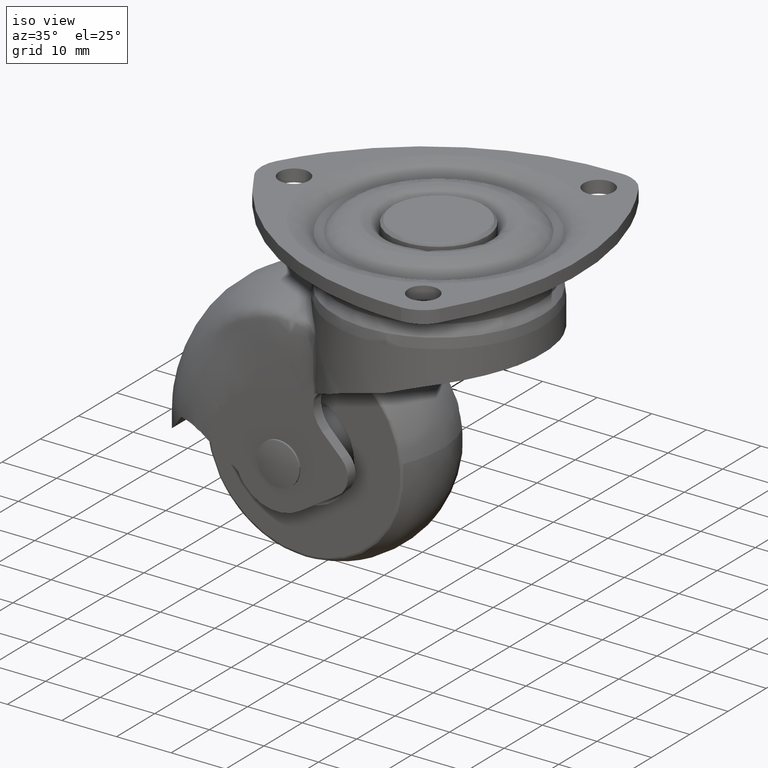
[diagram: clean part render]
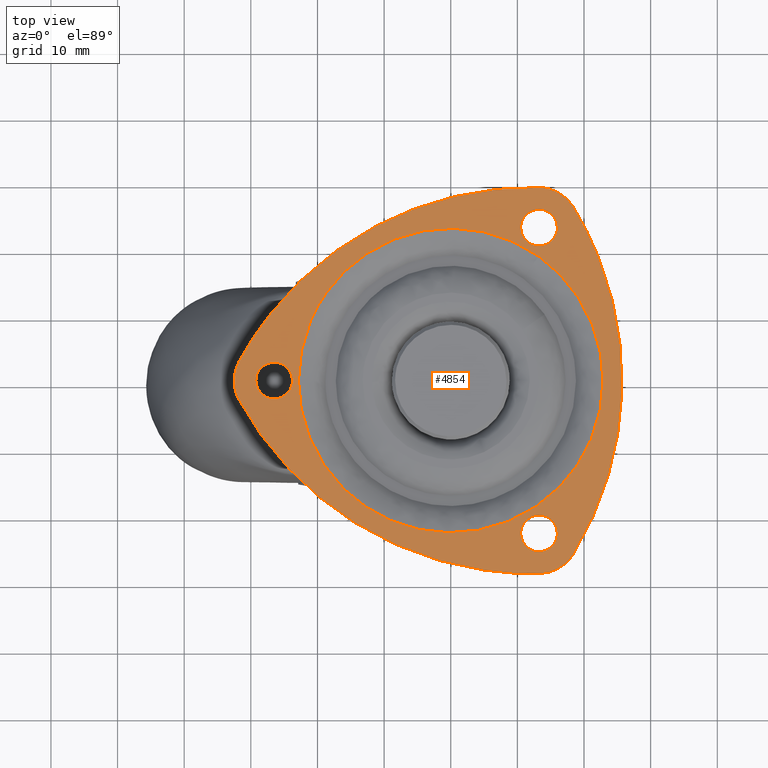
[diagram: tour spotlight — one face highlighted and labeled with its STEP entity id]
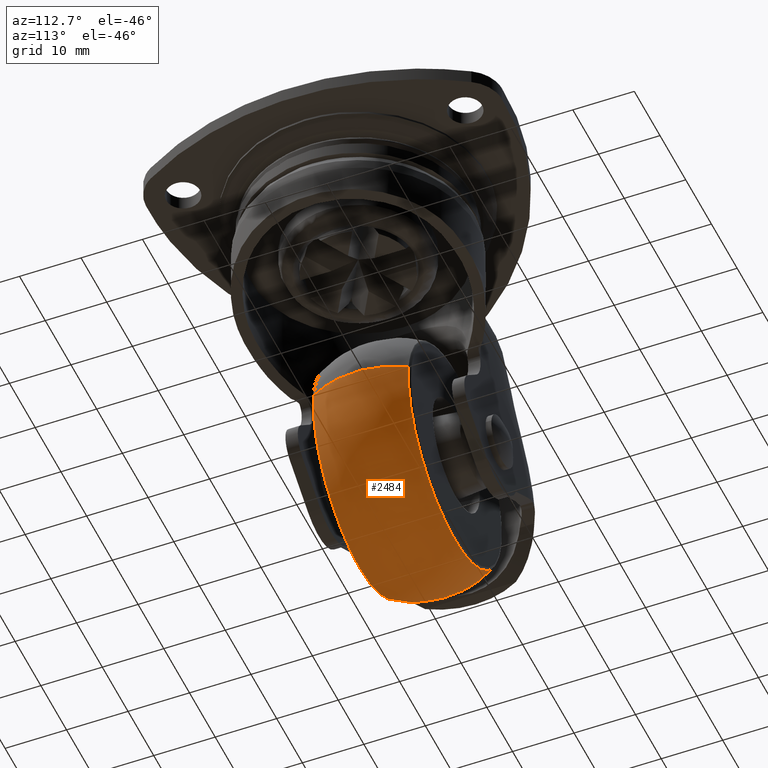
[diagram: tour spotlight — one face highlighted and labeled with its STEP entity id]
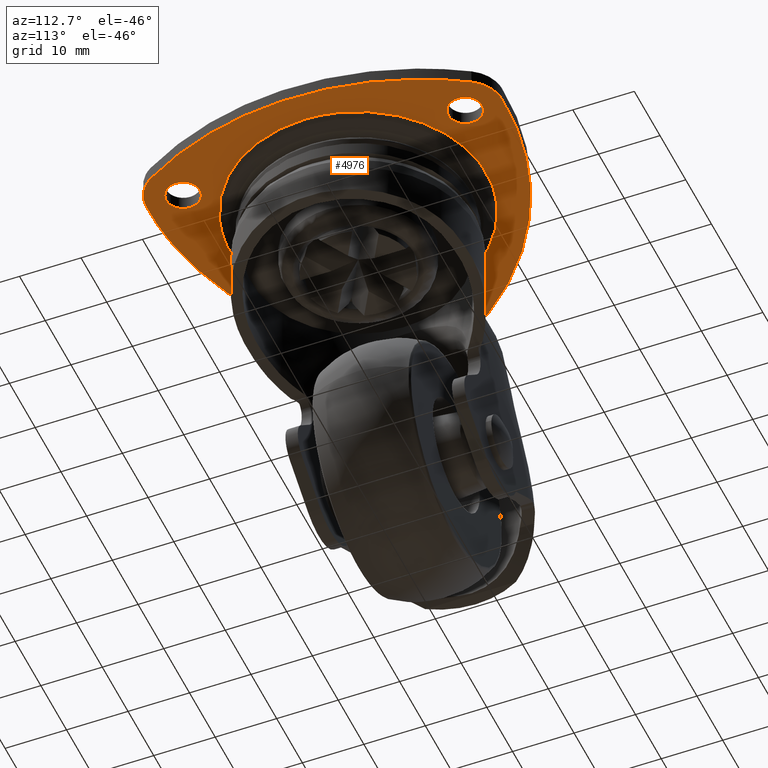
[diagram: tour spotlight — one face highlighted and labeled with its STEP entity id]
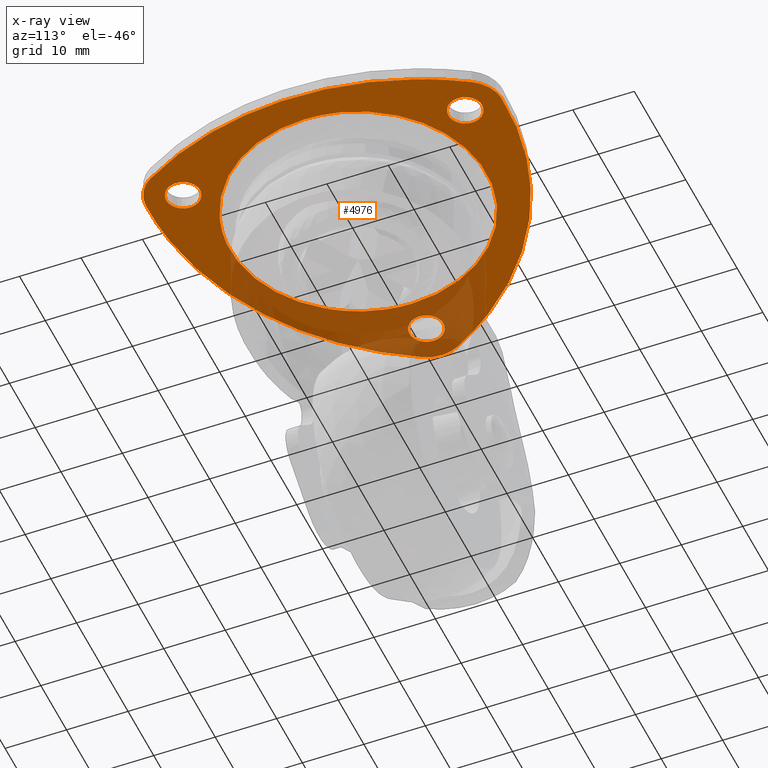
[diagram: x-ray of the same camera — body ghosted, this tour face saturated]
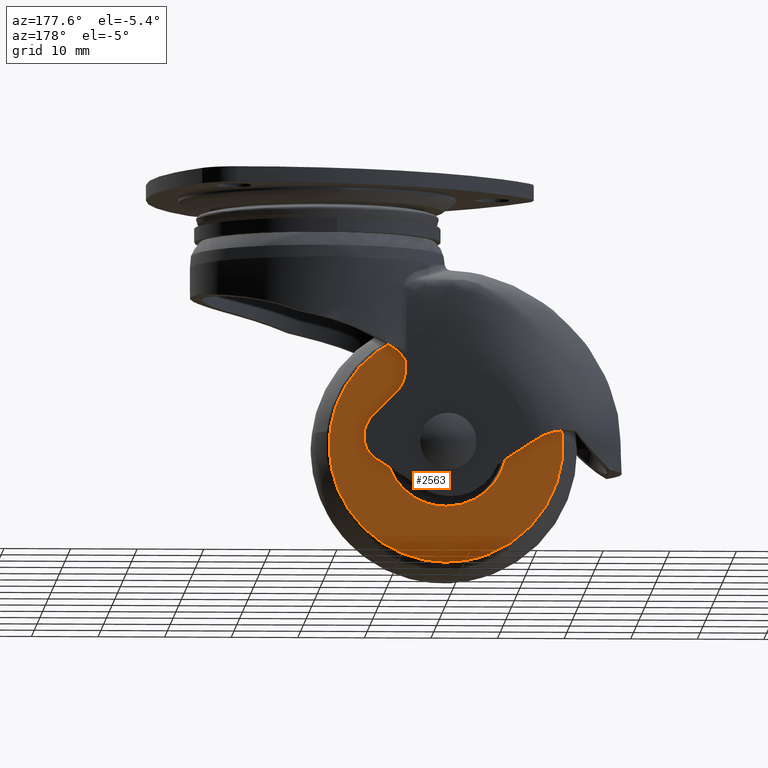
[diagram: tour spotlight — one face highlighted and labeled with its STEP entity id]
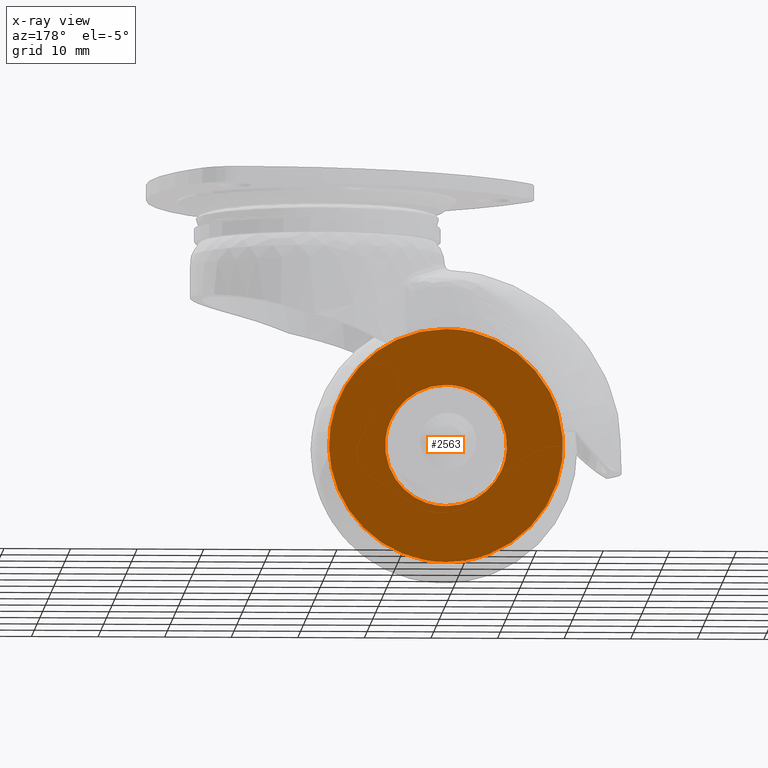
[diagram: x-ray of the same camera — body ghosted, this tour face saturated]
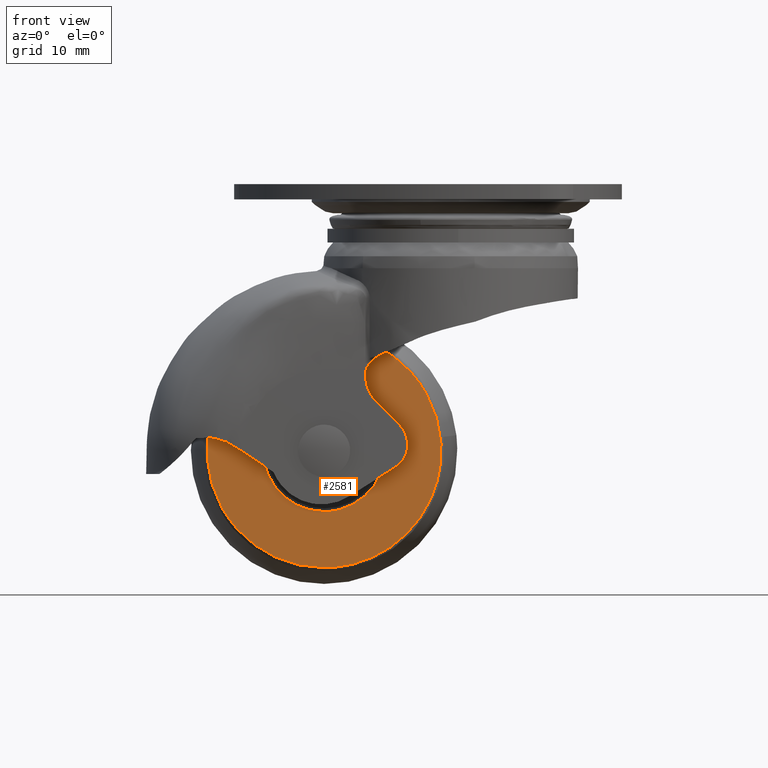
[diagram: tour spotlight — one face highlighted and labeled with its STEP entity id]
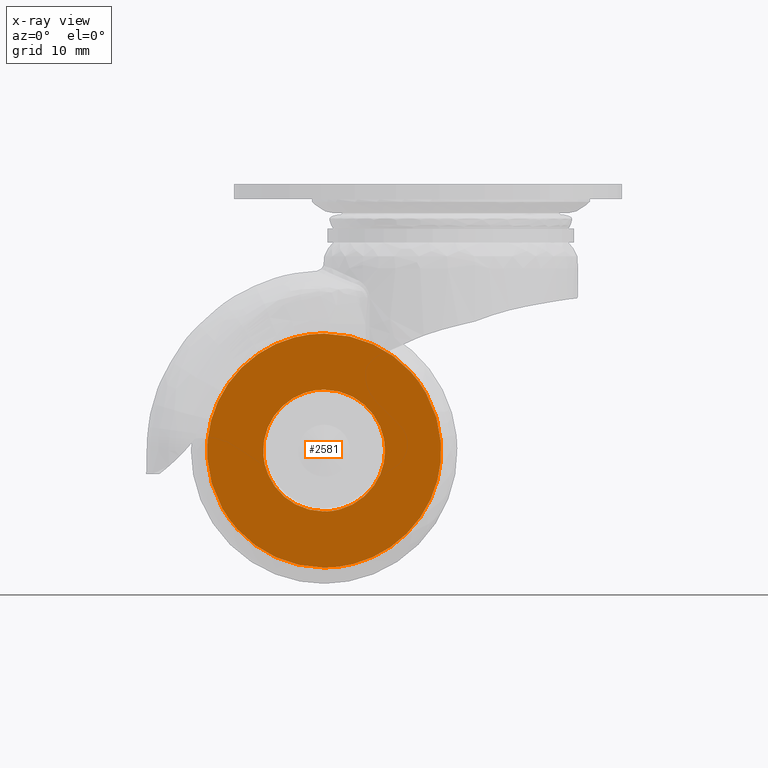
[diagram: x-ray of the same camera — body ghosted, this tour face saturated]
A machine part: a face-by-face anatomy tour. The part has 217 B-rep faces; the first image is the clean iso view, then the 5 largest visible faces are spotlighted one at a time (largest first), each with its STEP entity span.

Face 1 — top view, entity #4854. In plain terms, the highlighted face is a freeform B-spline surface patch.
Definition (entity closure, byte-faithful):
#3066=CARTESIAN_POINT('',(-26.824594145320749,-2.730776197498341,1.277743E-016));
#3067=VERTEX_POINT('',#3066);
#3068=CARTESIAN_POINT('',(-23.750000000000000,0.0,0.0));
#3069=VERTEX_POINT('',#3068);
#3070=CARTESIAN_POINT('',(-26.824594145320745,-2.730776197498340,1.277743E-016));
#3071=CARTESIAN_POINT('',(-26.662866329057564,-2.750000000000000,0.0));
#3072=CARTESIAN_POINT('',(-26.500000000000000,-2.750000000000000,0.0));
#3073=CARTESIAN_POINT('',(-23.750000000000011,-2.750000000000000,0.0));
#3074=CARTESIAN_POINT('',(-23.750000000000000,0.0,0.0));
#3082=(BOUNDED_CURVE()B_SPLINE_CURVE(2,(#3070,#3071,#3072,#3073,#3074),.UNSPECIFIED.,.F.,.U.)B_SPLINE_CURVE_WITH_KNOTS((3,2,3),(0.229562473513830,0.250000000000000,0.500000000000000),.UNSPECIFIED.)CURVE()GEOMETRIC_REPRESENTATION_ITEM()RATIONAL_B_SPLINE_CURVE((0.956026754184330,0.976055948331522,1.0,0.707106781186548,1.0))REPRESENTATION_ITEM(''));
#3083=EDGE_CURVE('',#3067,#3069,#3082,.T.);
#3085=CARTESIAN_POINT('',(-26.332116516199349,2.744870695655254,1.249001E-016));
#3086=VERTEX_POINT('',#3085);
#3087=CARTESIAN_POINT('',(-23.750000000000000,0.0,0.0));
#3088=CARTESIAN_POINT('',(-23.750000000000004,2.586941683839990,0.0));
#3089=CARTESIAN_POINT('',(-26.332116516199349,2.744870695655254,1.249001E-016));
#3097=(BOUNDED_CURVE()B_SPLINE_CURVE(2,(#3087,#3088,#3089),.UNSPECIFIED.,.F.,.U.)B_SPLINE_CURVE_WITH_KNOTS((3,3),(0.500000000000000,0.739332962231937),.UNSPECIFIED.)CURVE()GEOMETRIC_REPRESENTATION_ITEM()RATIONAL_B_SPLINE_CURVE((1.0,0.719603993294918,0.976072041651703))REPRESENTATION_ITEM(''));
#3098=EDGE_CURVE('',#3069,#3086,#3097,.T.);
#3165=CARTESIAN_POINT('',(-29.250000000000000,0.0,0.0));
#3166=VERTEX_POINT('',#3165);
#3167=CARTESIAN_POINT('',(-29.250000000000000,0.0,0.0));
#3168=CARTESIAN_POINT('',(-29.249999999999993,-2.442479946339859,0.0));
#3169=CARTESIAN_POINT('',(-26.824594145320745,-2.730776197498340,1.277743E-016));
#3177=(BOUNDED_CURVE()B_SPLINE_CURVE(2,(#3167,#3168,#3169),.UNSPECIFIED.,.F.,.U.)B_SPLINE_CURVE_WITH_KNOTS((3,3),(0.0,0.229562473513830),.UNSPECIFIED.)CURVE()GEOMETRIC_REPRESENTATION_ITEM()RATIONAL_B_SPLINE_CURVE((1.0,0.731050832855025,0.956026754184330))REPRESENTATION_ITEM(''));
#3178=EDGE_CURVE('',#3166,#3067,#3177,.T.);
#3212=CARTESIAN_POINT('',(-26.332116516199353,2.744870695655254,1.249001E-016));
#3213=CARTESIAN_POINT('',(-26.415979900848864,2.750000000000000,0.0));
#3214=CARTESIAN_POINT('',(-26.500000000000000,2.750000000000000,0.0));
#3215=CARTESIAN_POINT('',(-29.250000000000004,2.750000000000000,0.0));
#3216=CARTESIAN_POINT('',(-29.250000000000000,0.0,0.0));
#3224=(BOUNDED_CURVE()B_SPLINE_CURVE(2,(#3212,#3213,#3214,#3215,#3216),.UNSPECIFIED.,.F.,.U.)B_SPLINE_CURVE_WITH_KNOTS((3,2,3),(0.739332962231937,0.750000000000000,1.0),.UNSPECIFIED.)CURVE()GEOMETRIC_REPRESENTATION_ITEM()RATIONAL_B_SPLINE_CURVE((0.976072041651702,0.987502787891629,1.0,0.707106781186548,1.0))REPRESENTATION_ITEM(''));
#3225=EDGE_CURVE('',#3086,#3166,#3224,.T.);
#3252=CARTESIAN_POINT('',(12.925405854679260,20.218897802501662,1.277743E-016));
#3253=VERTEX_POINT('',#3252);
#3254=CARTESIAN_POINT('',(16.0,22.949674000000002,0.0));
#3255=VERTEX_POINT('',#3254);
#3256=CARTESIAN_POINT('',(12.925405854679255,20.218897802501662,1.277743E-016));
#3257=CARTESIAN_POINT('',(13.087133670942436,20.199674000000002,0.0));
#3258=CARTESIAN_POINT('',(13.250000000000000,20.199674000000002,0.0));
#3259=CARTESIAN_POINT('',(15.999999999999998,20.199674000000009,0.0));
#3260=CARTESIAN_POINT('',(16.0,22.949674000000002,0.0));
#3268=(BOUNDED_CURVE()B_SPLINE_CURVE(2,(#3256,#3257,#3258,#3259,#3260),.UNSPECIFIED.,.F.,.U.)B_SPLINE_CURVE_WITH_KNOTS((3,2,3),(0.229562473513830,0.250000000000000,0.500000000000000),.UNSPECIFIED.)CURVE()GEOMETRIC_REPRESENTATION_ITEM()RATIONAL_B_SPLINE_CURVE((0.956026754184330,0.976055948331522,1.0,0.707106781186548,1.0))REPRESENTATION_ITEM(''));
#3269=EDGE_CURVE('',#3253,#3255,#3268,.T.);
#3271=CARTESIAN_POINT('',(13.417883483800651,25.694544695655249,1.249001E-016));
#3272=VERTEX_POINT('',#3271);
#3273=CARTESIAN_POINT('',(16.0,22.949674000000002,0.0));
#3274=CARTESIAN_POINT('',(15.999999999999995,25.536615683839983,0.0));
#3275=CARTESIAN_POINT('',(13.417883483800647,25.694544695655253,1.249001E-016));
#3283=(BOUNDED_CURVE()B_SPLINE_CURVE(2,(#3273,#3274,#3275),.UNSPECIFIED.,.F.,.U.)B_SPLINE_CURVE_WITH_KNOTS((3,3),(0.500000000000000,0.739332962231937),.UNSPECIFIED.)CURVE()GEOMETRIC_REPRESENTATION_ITEM()RATIONAL_B_SPLINE_CURVE((1.0,0.719603993294918,0.976072041651703))REPRESENTATION_ITEM(''));
#3284=EDGE_CURVE('',#3255,#3272,#3283,.T.);
#3351=CARTESIAN_POINT('',(10.500000000000000,22.949674000000002,0.0));
#3352=VERTEX_POINT('',#3351);
#3353=CARTESIAN_POINT('',(10.500000000000000,22.949674000000002,0.0));
#3354=CARTESIAN_POINT('',(10.499999999999998,20.507194053660132,0.0));
#3355=CARTESIAN_POINT('',(12.925405854679251,20.218897802501658,1.277743E-016));
#3363=(BOUNDED_CURVE()B_SPLINE_CURVE(2,(#3353,#3354,#3355),.UNSPECIFIED.,.F.,.U.)B_SPLINE_CURVE_WITH_KNOTS((3,3),(0.0,0.229562473513830),.UNSPECIFIED.)CURVE()GEOMETRIC_REPRESENTATION_ITEM()RATIONAL_B_SPLINE_CURVE((1.0,0.731050832855026,0.956026754184330))REPRESENTATION_ITEM(''));
#3364=EDGE_CURVE('',#3352,#3253,#3363,.T.);
#3398=CARTESIAN_POINT('',(13.417883483800649,25.694544695655253,1.249001E-016));
#3399=CARTESIAN_POINT('',(13.334020099151134,25.699673999999998,0.0));
#3400=CARTESIAN_POINT('',(13.250000000000000,25.699674000000002,0.0));
#3401=CARTESIAN_POINT('',(10.499999999999998,25.699673999999991,0.0));
#3402=CARTESIAN_POINT('',(10.500000000000000,22.949674000000002,0.0));
#3410=(BOUNDED_CURVE()B_SPLINE_CURVE(2,(#3398,#3399,#3400,#3401,#3402),.UNSPECIFIED.,.F.,.U.)B_SPLINE_CURVE_WITH_KNOTS((3,2,3),(0.739332962231937,0.750000000000000,1.0),.UNSPECIFIED.)CURVE()GEOMETRIC_REPRESENTATION_ITEM()RATIONAL_B_SPLINE_CURVE((0.976072041651702,0.987502787891629,1.0,0.707106781186548,1.0))REPRESENTATION_ITEM(''));
#3411=EDGE_CURVE('',#3272,#3352,#3410,.T.);
#3438=CARTESIAN_POINT('',(12.925405854679260,-25.680449197498440,1.277743E-016));
#3439=VERTEX_POINT('',#3438);
#3440=CARTESIAN_POINT('',(16.0,-22.949673000000100,0.0));
#3441=VERTEX_POINT('',#3440);
#3442=CARTESIAN_POINT('',(12.925405854679260,-25.680449197498444,1.277743E-016));
#3443=CARTESIAN_POINT('',(13.087133670942434,-25.699673000000100,0.0));
#3444=CARTESIAN_POINT('',(13.250000000000000,-25.699673000000100,0.0));
#3445=CARTESIAN_POINT('',(15.999999999999998,-25.699673000000107,0.0));
#3446=CARTESIAN_POINT('',(16.0,-22.949673000000100,0.0));
#3454=(BOUNDED_CURVE()B_SPLINE_CURVE(2,(#3442,#3443,#3444,#3445,#3446),.UNSPECIFIED.,.F.,.U.)B_SPLINE_CURVE_WITH_KNOTS((3,2,3),(0.229562473513830,0.250000000000000,0.500000000000000),.UNSPECIFIED.)CURVE()GEOMETRIC_REPRESENTATION_ITEM()RATIONAL_B_SPLINE_CURVE((0.956026754184330,0.976055948331522,1.0,0.707106781186548,1.0))REPRESENTATION_ITEM(''));
#3455=EDGE_CURVE('',#3439,#3441,#3454,.T.);
#3457=CARTESIAN_POINT('',(13.417883483800651,-20.204802304344849,1.249001E-016));
#3458=VERTEX_POINT('',#3457);
#3459=CARTESIAN_POINT('',(16.0,-22.949673000000100,0.0));
#3460=CARTESIAN_POINT('',(15.999999999999995,-20.362731316160108,0.0));
#3461=CARTESIAN_POINT('',(13.417883483800647,-20.204802304344849,1.249001E-016));
#3469=(BOUNDED_CURVE()B_SPLINE_CURVE(2,(#3459,#3460,#3461),.UNSPECIFIED.,.F.,.U.)B_SPLINE_CURVE_WITH_KNOTS((3,3),(0.500000000000000,0.739332962231937),.UNSPECIFIED.)CURVE()GEOMETRIC_REPRESENTATION_ITEM()RATIONAL_B_SPLINE_CURVE((1.0,0.719603993294918,0.976072041651703))REPRESENTATION_ITEM(''));
#3470=EDGE_CURVE('',#3441,#3458,#3469,.T.);
#3537=CARTESIAN_POINT('',(10.500000000000000,-22.949673000000100,0.0));
#3538=VERTEX_POINT('',#3537);
#3539=CARTESIAN_POINT('',(10.500000000000000,-22.949673000000100,0.0));
#3540=CARTESIAN_POINT('',(10.500000000000000,-25.392152946339962,0.0));
#3541=CARTESIAN_POINT('',(12.925405854679260,-25.680449197498440,1.277743E-016));
#3549=(BOUNDED_CURVE()B_SPLINE_CURVE(2,(#3539,#3540,#3541),.UNSPECIFIED.,.F.,.U.)B_SPLINE_CURVE_WITH_KNOTS((3,3),(0.0,0.229562473513830),.UNSPECIFIED.)CURVE()GEOMETRIC_REPRESENTATION_ITEM()RATIONAL_B_SPLINE_CURVE((1.0,0.731050832855025,0.956026754184330))REPRESENTATION_ITEM(''));
#3550=EDGE_CURVE('',#3538,#3439,#3549,.T.);
#3584=CARTESIAN_POINT('',(13.417883483800649,-20.204802304344849,1.249001E-016));
#3585=CARTESIAN_POINT('',(13.334020099151134,-20.199673000000107,0.0));
#3586=CARTESIAN_POINT('',(13.250000000000000,-20.199673000000100,0.0));
#3587=CARTESIAN_POINT('',(10.499999999999998,-20.199673000000111,0.0));
#3588=CARTESIAN_POINT('',(10.500000000000000,-22.949673000000100,0.0));
#3596=(BOUNDED_CURVE()B_SPLINE_CURVE(2,(#3584,#3585,#3586,#3587,#3588),.UNSPECIFIED.,.F.,.U.)B_SPLINE_CURVE_WITH_KNOTS((3,2,3),(0.739332962231937,0.750000000000000,1.0),.UNSPECIFIED.)CURVE()GEOMETRIC_REPRESENTATION_ITEM()RATIONAL_B_SPLINE_CURVE((0.976072041651702,0.987502787891629,1.0,0.707106781186548,1.0))REPRESENTATION_ITEM(''));
#3597=EDGE_CURVE('',#3458,#3538,#3596,.T.);
#3836=CARTESIAN_POINT('',(-18.653898074790721,13.197922715357709,-1.032646E-015));
#3837=VERTEX_POINT('',#3836);
#3851=CARTESIAN_POINT('',(-22.850669080457550,0.0,0.0));
#3852=VERTEX_POINT('',#3851);
#3853=CARTESIAN_POINT('',(-22.850669080457550,0.0,0.0));
#3854=CARTESIAN_POINT('',(-22.850669080457550,7.266221170253561,0.0));
#3855=CARTESIAN_POINT('',(-18.653898074790714,13.197922715357700,-1.032646E-015));
#3863=(BOUNDED_CURVE()B_SPLINE_CURVE(2,(#3853,#3854,#3855),.UNSPECIFIED.,.F.,.U.)B_SPLINE_CURVE_WITH_KNOTS((3,3),(0.0,0.099340826589061),.UNSPECIFIED.)CURVE()GEOMETRIC_REPRESENTATION_ITEM()RATIONAL_B_SPLINE_CURVE((1.0,0.883614982162964,0.859724235322038))REPRESENTATION_ITEM(''));
#3864=EDGE_CURVE('',#3852,#3837,#3863,.T.);
#3866=CARTESIAN_POINT('',(22.850669080457550,0.0,0.0));
#3867=VERTEX_POINT('',#3866);
#3868=CARTESIAN_POINT('',(22.850669080457550,0.0,0.0));
#3869=CARTESIAN_POINT('',(22.850669080457546,-22.850669080457546,0.0));
#3870=CARTESIAN_POINT('',(0.0,-22.850669080457550,0.0));
#3871=CARTESIAN_POINT('',(-22.850669080457546,-22.850669080457546,0.0));
#3872=CARTESIAN_POINT('',(-22.850669080457550,0.0,0.0));
#3880=(BOUNDED_CURVE()B_SPLINE_CURVE(2,(#3868,#3869,#3870,#3871,#3872),.UNSPECIFIED.,.F.,.U.)B_SPLINE_CURVE_WITH_KNOTS((3,2,3),(0.500000000000000,0.750000000000000,1.0),.UNSPECIFIED.)CURVE()GEOMETRIC_REPRESENTATION_ITEM()RATIONAL_B_SPLINE_CURVE((1.0,0.707106781186547,1.0,0.707106781186547,1.0))REPRESENTATION_ITEM(''));
#3881=EDGE_CURVE('',#3867,#3852,#3880,.T.);
#3883=CARTESIAN_POINT('',(13.197922715357709,18.653898074790710,-1.032646E-015));
#3884=VERTEX_POINT('',#3883);
#3885=CARTESIAN_POINT('',(13.197922715357713,18.653898074790717,-1.032646E-015));
#3886=CARTESIAN_POINT('',(22.850669080457543,11.824430046833628,0.0));
#3887=CARTESIAN_POINT('',(22.850669080457550,0.0,0.0));
#3895=(BOUNDED_CURVE()B_SPLINE_CURVE(2,(#3885,#3886,#3887),.UNSPECIFIED.,.F.,.U.)B_SPLINE_CURVE_WITH_KNOTS((3,3),(0.349340826589061,0.500000000000000),.UNSPECIFIED.)CURVE()GEOMETRIC_REPRESENTATION_ITEM()RATIONAL_B_SPLINE_CURVE((0.859724235322038,0.823491799023584,1.0))REPRESENTATION_ITEM(''));
#3896=EDGE_CURVE('',#3884,#3867,#3895,.T.);
#3947=CARTESIAN_POINT('',(-18.653898074790717,13.197922715357702,-1.032646E-015));
#3948=CARTESIAN_POINT('',(-11.824430046833632,22.850669080457543,0.0));
#3949=CARTESIAN_POINT('',(0.0,22.850669080457550,0.0));
#3950=CARTESIAN_POINT('',(7.266221170253582,22.850669080457546,0.0));
#3951=CARTESIAN_POINT('',(13.197922715357713,18.653898074790717,-1.032646E-015));
#3959=(BOUNDED_CURVE()B_SPLINE_CURVE(2,(#3947,#3948,#3949,#3950,#3951),.UNSPECIFIED.,.F.,.U.)B_SPLINE_CURVE_WITH_KNOTS((3,2,3),(0.099340826589061,0.250000000000000,0.349340826589061),.UNSPECIFIED.)CURVE()GEOMETRIC_REPRESENTATION_ITEM()RATIONAL_B_SPLINE_CURVE((0.859724235322038,0.823491799023584,1.0,0.883614982162963,0.859724235322038))REPRESENTATION_ITEM(''));
#3960=EDGE_CURVE('',#3837,#3884,#3959,.T.);
#4733=CARTESIAN_POINT('',(-35.407548841360899,31.853379514801791,0.0));
#4734=CARTESIAN_POINT('',(28.616739386169861,31.853379514801791,0.0));
#4735=CARTESIAN_POINT('',(-35.407548841360899,-31.853376444295250,0.0));
#4736=CARTESIAN_POINT('',(28.616739386169861,-31.853376444295250,0.0));
#4737=B_SPLINE_SURFACE_WITH_KNOTS('',1,1,((#4733,#4735),(#4734,#4736)),.UNSPECIFIED.,.F.,.F.,.U.,(2,2),(2,2),(0.0,64.024288227530761),(0.0,63.706755959097052),.UNSPECIFIED.);
#4738=CARTESIAN_POINT('',(18.369201818529849,26.079173804453351,0.0));
#4739=VERTEX_POINT('',#4738);
#4740=CARTESIAN_POINT('',(13.400626615101521,28.947782728843048,0.0));
#4741=VERTEX_POINT('',#4740);
#4742=CARTESIAN_POINT('',(18.369201818529849,26.079173804453351,0.0));
#4743=CARTESIAN_POINT('',(16.665671970180849,28.865790037092776,0.0));
#4744=CARTESIAN_POINT('',(13.400626615101521,28.947782728843048,0.0));
#4752=(BOUNDED_CURVE()B_SPLINE_CURVE(2,(#4742,#4743,#4744),.UNSPECIFIED.,.F.,.U.)CURVE()GEOMETRIC_REPRESENTATION_ITEM()QUASI_UNIFORM_CURVE()RATIONAL_B_SPLINE_CURVE((1.0,0.878304632990336,1.0))REPRESENTATION_ITEM(''));
#4753=EDGE_CURVE('',#4739,#4741,#4752,.T.);
#4754=ORIENTED_EDGE('',*,*,#4753,.T.);
#4755=CARTESIAN_POINT('',(-31.769827433630951,2.868608924389780,0.0));
#4756=VERTEX_POINT('',#4755);
#4757=CARTESIAN_POINT('',(13.400626615101530,28.947782728843048,0.0));
#4758=CARTESIAN_POINT('',(-17.156038547551749,29.715131691521837,0.0));
#4759=CARTESIAN_POINT('',(-31.769827433630951,2.868608924389775,0.0));
#4767=(BOUNDED_CURVE()B_SPLINE_CURVE(2,(#4757,#4758,#4759),.UNSPECIFIED.,.F.,.U.)CURVE()GEOMETRIC_REPRESENTATION_ITEM()QUASI_UNIFORM_CURVE()RATIONAL_B_SPLINE_CURVE((1.0,0.853200256370594,1.0))REPRESENTATION_ITEM(''));
#4768=EDGE_CURVE('',#4741,#4756,#4767,.T.);
#4769=ORIENTED_EDGE('',*,*,#4768,.T.);
#4770=CARTESIAN_POINT('',(-31.769828012035550,-2.868608150926780,0.0));
#4771=VERTEX_POINT('',#4770);
#4772=CARTESIAN_POINT('',(-31.769827433630951,2.868608924389780,0.0));
#4773=CARTESIAN_POINT('',(-33.331342783626887,0.000000544157564,0.0));
#4774=CARTESIAN_POINT('',(-31.769828012035550,-2.868608150926780,0.0));
#4782=(BOUNDED_CURVE()B_SPLINE_CURVE(2,(#4772,#4773,#4774),.UNSPECIFIED.,.F.,.U.)CURVE()GEOMETRIC_REPRESENTATION_ITEM()QUASI_UNIFORM_CURVE()RATIONAL_B_SPLINE_CURVE((1.0,0.878304630588961,1.0))REPRESENTATION_ITEM(''));
#4783=EDGE_CURVE('',#4756,#4771,#4782,.T.);
#4784=ORIENTED_EDGE('',*,*,#4783,.T.);
#4785=CARTESIAN_POINT('',(13.400626615101540,-28.947781728843250,0.0));
#4786=VERTEX_POINT('',#4785);
#4787=CARTESIAN_POINT('',(-31.769828012035550,-2.868608150926780,0.0));
#4788=CARTESIAN_POINT('',(-17.156038600813027,-29.715130692859464,0.0));
#4789=CARTESIAN_POINT('',(13.400626615101521,-28.947781728843150,0.0));
#4797=(BOUNDED_CURVE()B_SPLINE_CURVE(2,(#4787,#4788,#4789),.UNSPECIFIED.,.F.,.U.)CURVE()GEOMETRIC_REPRESENTATION_ITEM()QUASI_UNIFORM_CURVE()RATIONAL_B_SPLINE_CURVE((1.0,0.853200255966014,1.0))REPRESENTATION_ITEM(''));
#4798=EDGE_CURVE('',#4771,#4786,#4797,.T.);
#4799=ORIENTED_EDGE('',*,*,#4798,.T.);
#4800=CARTESIAN_POINT('',(18.369201538223550,-26.079173856534499,0.0));
#4801=VERTEX_POINT('',#4800);
#4802=CARTESIAN_POINT('',(13.400626615101540,-28.947781728843250,0.0));
#4803=CARTESIAN_POINT('',(16.665671293823422,-28.865789054077798,0.0));
#4804=CARTESIAN_POINT('',(18.369201538223560,-26.079173856534499,0.0));
#4812=(BOUNDED_CURVE()B_SPLINE_CURVE(2,(#4802,#4803,#4804),.UNSPECIFIED.,.F.,.U.)CURVE()GEOMETRIC_REPRESENTATION_ITEM()QUASI_UNIFORM_CURVE()RATIONAL_B_SPLINE_CURVE((1.0,0.878304674578743,1.0))REPRESENTATION_ITEM(''));
#4813=EDGE_CURVE('',#4786,#4801,#4812,.T.);
#4814=ORIENTED_EDGE('',*,*,#4813,.T.);
#4815=CARTESIAN_POINT('',(18.369201538223550,-26.079173856534499,0.0));
#4816=CARTESIAN_POINT('',(34.312078163401253,-0.000000111719852,0.0));
#4817=CARTESIAN_POINT('',(18.369201818529859,26.079173804453340,0.0));
#4825=(BOUNDED_CURVE()B_SPLINE_CURVE(2,(#4815,#4816,#4817),.UNSPECIFIED.,.F.,.U.)CURVE()GEOMETRIC_REPRESENTATION_ITEM()QUASI_UNIFORM_CURVE()RATIONAL_B_SPLINE_CURVE((1.0,0.853200255376253,1.0))REPRESENTATION_ITEM(''));
#4826=EDGE_CURVE('',#4801,#4739,#4825,.T.);
#4827=ORIENTED_EDGE('',*,*,#4826,.T.);
#4828=EDGE_LOOP('',(#4754,#4769,#4784,#4799,#4814,#4827));
#4829=FACE_OUTER_BOUND('',#4828,.T.);
#4830=ORIENTED_EDGE('',*,*,#3881,.T.);
#4831=ORIENTED_EDGE('',*,*,#3864,.T.);
#4832=ORIENTED_EDGE('',*,*,#3960,.T.);
#4833=ORIENTED_EDGE('',*,*,#3896,.T.);
#4834=EDGE_LOOP('',(#4830,#4831,#4832,#4833));
#4835=FACE_BOUND('',#4834,.T.);
#4836=ORIENTED_EDGE('',*,*,#3470,.F.);
#4837=ORIENTED_EDGE('',*,*,#3455,.F.);
#4838=ORIENTED_EDGE('',*,*,#3550,.F.);
#4839=ORIENTED_EDGE('',*,*,#3597,.F.);
#4840=EDGE_LOOP('',(#4836,#4837,#4838,#4839));
#4841=FACE_BOUND('',#4840,.T.);
#4842=ORIENTED_EDGE('',*,*,#3284,.F.);
#4843=ORIENTED_EDGE('',*,*,#3269,.F.);
#4844=ORIENTED_EDGE('',*,*,#3364,.F.);
#4845=ORIENTED_EDGE('',*,*,#3411,.F.);
#4846=EDGE_LOOP('',(#4842,#4843,#4844,#4845));
#4847=FACE_BOUND('',#4846,.T.);
#4848=ORIENTED_EDGE('',*,*,#3098,.F.);
#4849=ORIENTED_EDGE('',*,*,#3083,.F.);
#4850=ORIENTED_EDGE('',*,*,#3178,.F.);
#4851=ORIENTED_EDGE('',*,*,#3225,.F.);
#4852=EDGE_LOOP('',(#4848,#4849,#4850,#4851));
#4853=FACE_BOUND('',#4852,.T.);
#4854=ADVANCED_FACE('',(#4829,#4835,#4841,#4847,#4853),#4737,.F.);

Face 2 — auxiliary view, entity #2484. In plain terms, the highlighted face is a freeform B-spline surface patch.
Definition (entity closure, byte-faithful):
#1848=CARTESIAN_POINT('',(-6.583102481280289,7.741936135025106,-56.755388262646562));
#1849=VERTEX_POINT('',#1848);
#1863=CARTESIAN_POINT('',(-15.883204037254799,7.741950440309198,-31.526282511121970));
#1864=VERTEX_POINT('',#1863);
#1865=CARTESIAN_POINT('',(-6.583102481280288,7.741936135025106,-56.755388262646562));
#1866=CARTESIAN_POINT('',(-18.002229059907609,7.741938576398435,-52.268876010028563));
#1867=CARTESIAN_POINT('',(-18.002228438981501,7.741945580525633,-40.000006500542682));
#1868=CARTESIAN_POINT('',(-18.002228211145198,7.741948150548680,-35.498192566793705));
#1869=CARTESIAN_POINT('',(-15.883204037254806,7.741950440309198,-31.526282511121966));
#1877=(BOUNDED_CURVE()B_SPLINE_CURVE(2,(#1865,#1866,#1867,#1868,#1869),.UNSPECIFIED.,.F.,.U.)B_SPLINE_CURVE_WITH_KNOTS((3,2,3),(0.562091870105445,0.750000000000000,0.830114600128736),.UNSPECIFIED.)CURVE()GEOMETRIC_REPRESENTATION_ITEM()RATIONAL_B_SPLINE_CURVE((0.890644758050249,0.779851931975869,1.0,0.906139907577367,0.872436325334618))REPRESENTATION_ITEM(''));
#1878=EDGE_CURVE('',#1849,#1864,#1877,.T.);
#1971=CARTESIAN_POINT('',(0.0,7.741957127476519,-21.997782324370629));
#1972=VERTEX_POINT('',#1971);
#1973=CARTESIAN_POINT('',(-15.883204037254806,7.741950440309198,-31.526282511121966));
#1974=CARTESIAN_POINT('',(-10.799726583100981,7.741956639457517,-21.997782739919185));
#1975=CARTESIAN_POINT('',(0.0,7.741957127476519,-21.997782324370629));
#1983=(BOUNDED_CURVE()B_SPLINE_CURVE(2,(#1973,#1974,#1975),.UNSPECIFIED.,.F.,.U.)B_SPLINE_CURVE_WITH_KNOTS((3,3),(0.830114600128736,1.0),.UNSPECIFIED.)CURVE()GEOMETRIC_REPRESENTATION_ITEM()RATIONAL_B_SPLINE_CURVE((0.872436325334618,0.800966873609180,1.0))REPRESENTATION_ITEM(''));
#1984=EDGE_CURVE('',#1864,#1972,#1983,.T.);
#1986=CARTESIAN_POINT('',(17.881824193208271,7.741935547322694,-37.921386432191142));
#1987=VERTEX_POINT('',#1986);
#2001=CARTESIAN_POINT('',(0.0,7.741935547366899,-58.002229607473851));
#2002=VERTEX_POINT('',#2001);
#2003=CARTESIAN_POINT('',(17.881824193208274,7.741935547322695,-37.921386432191142));
#2004=CARTESIAN_POINT('',(18.002229607473851,7.741935547366899,-38.957205924366598));
#2005=CARTESIAN_POINT('',(18.002229607473851,7.741935547366899,-40.0));
#2006=CARTESIAN_POINT('',(18.002229607473854,7.741935547366898,-58.002229607473836));
#2007=CARTESIAN_POINT('',(0.0,7.741935547366899,-58.002229607473851));
#2015=(BOUNDED_CURVE()B_SPLINE_CURVE(2,(#2003,#2004,#2005,#2006,#2007),.UNSPECIFIED.,.F.,.U.)B_SPLINE_CURVE_WITH_KNOTS((3,2,3),(0.229999999999810,0.250000000000000,0.500000000000000),.UNSPECIFIED.)CURVE()GEOMETRIC_REPRESENTATION_ITEM()RATIONAL_B_SPLINE_CURVE((0.956886118190286,0.976568542494701,1.0,0.707106781186547,1.0))REPRESENTATION_ITEM(''));
#2016=EDGE_CURVE('',#1987,#2002,#2015,.T.);
#2018=CARTESIAN_POINT('',(0.0,7.741935547366899,-58.002229607473851));
#2019=CARTESIAN_POINT('',(-3.409627358578136,7.741935547366899,-58.002229607473843));
#2020=CARTESIAN_POINT('',(-6.583102481280289,7.741936135025106,-56.755388262646548));
#2028=(BOUNDED_CURVE()B_SPLINE_CURVE(2,(#2018,#2019,#2020),.UNSPECIFIED.,.F.,.U.)B_SPLINE_CURVE_WITH_KNOTS((3,3),(0.500000000000000,0.562091870105445),.UNSPECIFIED.)CURVE()GEOMETRIC_REPRESENTATION_ITEM()RATIONAL_B_SPLINE_CURVE((1.0,0.927254849210678,0.890644758050248))REPRESENTATION_ITEM(''));
#2029=EDGE_CURVE('',#2002,#1849,#2028,.T.);
#2058=CARTESIAN_POINT('',(-15.665247768531840,-7.741936419467464,-48.870190745649680));
#2059=VERTEX_POINT('',#2058);
#2060=CARTESIAN_POINT('',(0.0,-7.741939943948433,-21.997772798119961));
#2061=VERTEX_POINT('',#2060);
#2062=CARTESIAN_POINT('',(-15.665247768531840,-7.741936419467464,-48.870190745649687));
#2063=CARTESIAN_POINT('',(-18.002229675233554,-7.741937127626840,-44.742952079038680));
#2064=CARTESIAN_POINT('',(-18.002229675233551,-7.741937714901827,-40.000001236676752));
#2065=CARTESIAN_POINT('',(-18.002229675233544,-7.741939943948433,-21.997772798119961));
#2066=CARTESIAN_POINT('',(0.0,-7.741939943948433,-21.997772798119961));
#2074=(BOUNDED_CURVE()B_SPLINE_CURVE(2,(#2062,#2063,#2064,#2065,#2066),.UNSPECIFIED.,.F.,.U.)B_SPLINE_CURVE_WITH_KNOTS((3,2,3),(0.666016366175468,0.750000000000000,1.0),.UNSPECIFIED.)CURVE()GEOMETRIC_REPRESENTATION_ITEM()RATIONAL_B_SPLINE_CURVE((0.869321283383865,0.901607052645930,1.0,0.707106781186548,1.0))REPRESENTATION_ITEM(''));
#2075=EDGE_CURVE('',#2059,#2061,#2074,.T.);
#2178=CARTESIAN_POINT('',(0.0,-7.741935485855220,-58.002229675233551));
#2179=VERTEX_POINT('',#2178);
#2180=CARTESIAN_POINT('',(0.0,-7.741935485855220,-58.002229675233551));
#2181=CARTESIAN_POINT('',(-10.494380266970438,-7.741935485855221,-58.002229675233551));
#2182=CARTESIAN_POINT('',(-15.665247768531831,-7.741936419467464,-48.870190745649687));
#2190=(BOUNDED_CURVE()B_SPLINE_CURVE(2,(#2180,#2181,#2182),.UNSPECIFIED.,.F.,.U.)B_SPLINE_CURVE_WITH_KNOTS((3,3),(0.500000000000000,0.666016366175468),.UNSPECIFIED.)CURVE()GEOMETRIC_REPRESENTATION_ITEM()RATIONAL_B_SPLINE_CURVE((1.0,0.805499728540618,0.869321283383865))REPRESENTATION_ITEM(''));
#2191=EDGE_CURVE('',#2179,#2059,#2190,.T.);
#2193=CARTESIAN_POINT('',(17.881824247661068,-7.741935478695812,-37.921386425865101));
#2194=VERTEX_POINT('',#2193);
#2195=CARTESIAN_POINT('',(17.881824247661072,-7.741935478695812,-37.921386425865101));
#2196=CARTESIAN_POINT('',(18.002229675233547,-7.741935485855222,-38.957205920445190));
#2197=CARTESIAN_POINT('',(18.002229675233551,-7.741935485855220,-40.0));
#2198=CARTESIAN_POINT('',(18.002229675233544,-7.741935485855221,-58.002229675233544));
#2199=CARTESIAN_POINT('',(0.0,-7.741935485855220,-58.002229675233551));
#2207=(BOUNDED_CURVE()B_SPLINE_CURVE(2,(#2195,#2196,#2197,#2198,#2199),.UNSPECIFIED.,.F.,.U.)B_SPLINE_CURVE_WITH_KNOTS((3,2,3),(0.229999999999878,0.250000000000000,0.500000000000000),.UNSPECIFIED.)CURVE()GEOMETRIC_REPRESENTATION_ITEM()RATIONAL_B_SPLINE_CURVE((0.956886118190420,0.976568542494781,1.0,0.707106781186548,1.0))REPRESENTATION_ITEM(''));
#2208=EDGE_CURVE('',#2194,#2179,#2207,.T.);
#2414=CARTESIAN_POINT('',(17.496555866815406,8.405296508026964,-37.966171113185844));
#2415=CARTESIAN_POINT('',(22.651138917050353,0.000011710979316,-37.366993767264077));
#2416=CARTESIAN_POINT('',(17.496566266471842,-8.405279549876294,-37.966169904312416));
#2417=CARTESIAN_POINT('',(17.614367066160280,8.405296508026964,-38.979673401622293));
#2418=CARTESIAN_POINT('',(22.803657953520059,0.000011710979316,-38.679079488755335));
#2419=CARTESIAN_POINT('',(17.614377535841715,-8.405279549876294,-38.979672795157477));
#2420=CARTESIAN_POINT('',(17.614367066160284,8.405296508026964,-39.999999999999993));
#2421=CARTESIAN_POINT('',(22.803657953520073,0.000011710979316,-40.000000000000007));
#2422=CARTESIAN_POINT('',(17.614377535841708,-8.405279549876292,-40.0));
#2423=CARTESIAN_POINT('',(17.614367066160295,8.405296508026964,-57.614367066160298));
#2424=CARTESIAN_POINT('',(22.803657953520066,0.000011710979316,-62.803657953520080));
#2425=CARTESIAN_POINT('',(17.614377535841708,-8.405279549876294,-57.614377535841719));
#2426=CARTESIAN_POINT('',(0.0,8.405296508026964,-57.614367066160291));
#2427=CARTESIAN_POINT('',(0.0,0.000011710979316,-62.803657953520094));
#2428=CARTESIAN_POINT('',(0.0,-8.405279549876292,-57.614377535841719));
#2429=CARTESIAN_POINT('',(-17.614367066160295,8.405296508026964,-57.614367066160298));
#2430=CARTESIAN_POINT('',(-22.803657953520066,0.000011710979316,-62.803657953520080));
#2431=CARTESIAN_POINT('',(-17.614377535841708,-8.405279549876294,-57.614377535841719));
#2432=CARTESIAN_POINT('',(-17.614367066160284,8.405296508026964,-39.999999999999993));
#2433=CARTESIAN_POINT('',(-22.803657953520073,0.000011710979316,-40.000000000000007));
#2434=CARTESIAN_POINT('',(-17.614377535841708,-8.405279549876292,-40.0));
#2435=CARTESIAN_POINT('',(-17.614367066160295,8.405296508026964,-22.385632933839709));
#2436=CARTESIAN_POINT('',(-22.803657953520066,0.000011710979316,-17.196342046479927));
#2437=CARTESIAN_POINT('',(-17.614377535841708,-8.405279549876294,-22.385622464158299));
#2438=CARTESIAN_POINT('',(0.0,8.405296508026964,-22.385632933839716));
#2439=CARTESIAN_POINT('',(0.0,0.000011710979316,-17.196342046479931));
#2440=CARTESIAN_POINT('',(0.0,-8.405279549876292,-22.385622464158288));
#2448=(BOUNDED_SURFACE()B_SPLINE_SURFACE(2,2,((#2414,#2417,#2420,#2423,#2426,#2429,#2432,#2435,#2438),(#2415,#2418,#2421,#2424,#2427,#2430,#2433,#2436,#2439),(#2416,#2419,#2422,#2425,#2428,#2431,#2434,#2437,#2440)),.UNSPECIFIED.,.F.,.F.,.U.)B_SPLINE_SURFACE_WITH_KNOTS((3,3),(3,2,2,2,3),(0.0,18.164775818489101),(0.0,2.650966246152558,35.788051235994160,68.925136225835772,102.062221215677400),.UNSPECIFIED.)GEOMETRIC_REPRESENTATION_ITEM()RATIONAL_B_SPLINE_SURFACE(((0.941373388125241,0.960736723859228,0.983788313102748,0.695643387447028,0.983788313102748,0.695643387447028,0.983788313102748,0.695643387447028,0.983788313102748),(0.801012844669571,0.817489070611609,0.837103624525098,0.591921649457534,0.837103624525098,0.591921649457534,0.837103624525098,0.591921649457534,0.837103624525098),(0.941373055317993,0.960736384206388,0.983787965300394,0.695643141513624,0.983787965300394,0.695643141513624,0.983787965300394,0.695643141513624,0.983787965300394)))REPRESENTATION_ITEM('')SURFACE());
#2449=ORIENTED_EDGE('',*,*,#2016,.F.);
#2450=CARTESIAN_POINT('',(17.881824193208278,7.741935547322694,-37.921386432191149));
#2451=CARTESIAN_POINT('',(22.133767149096187,0.000000049448459,-37.427133372663270));
#2452=CARTESIAN_POINT('',(17.881824247661072,-7.741935478695813,-37.921386425865101));
#2460=(BOUNDED_CURVE()B_SPLINE_CURVE(2,(#2450,#2451,#2452),.UNSPECIFIED.,.F.,.U.)B_SPLINE_CURVE_WITH_KNOTS((3,3),(0.362871079318848,0.637128919148161),.UNSPECIFIED.)CURVE()GEOMETRIC_REPRESENTATION_ITEM()RATIONAL_B_SPLINE_CURVE((0.929203502129415,0.813182549956654,0.929203500832395))REPRESENTATION_ITEM(''));
#2461=EDGE_CURVE('',#1987,#2194,#2460,.T.);
#2462=ORIENTED_EDGE('',*,*,#2461,.T.);
#2463=ORIENTED_EDGE('',*,*,#2208,.T.);
#2464=ORIENTED_EDGE('',*,*,#2191,.T.);
#2465=ORIENTED_EDGE('',*,*,#2075,.T.);
#2466=CARTESIAN_POINT('',(0.0,7.741957127476519,-21.997782324370625));
#2467=CARTESIAN_POINT('',(0.0,0.000011225336770,-17.717188018067752));
#2468=CARTESIAN_POINT('',(0.0,-7.741939943948433,-21.997772798119961));
#2476=(BOUNDED_CURVE()B_SPLINE_CURVE(2,(#2466,#2467,#2468),.UNSPECIFIED.,.F.,.U.)B_SPLINE_CURVE_WITH_KNOTS((3,3),(0.362870642543442,0.637129009451164),.UNSPECIFIED.)CURVE()GEOMETRIC_REPRESENTATION_ITEM()RATIONAL_B_SPLINE_CURVE((0.971070490008239,0.849821427570696,0.971070182303686))REPRESENTATION_ITEM(''));
#2477=EDGE_CURVE('',#1972,#2061,#2476,.T.);
#2478=ORIENTED_EDGE('',*,*,#2477,.F.);
#2479=ORIENTED_EDGE('',*,*,#1984,.F.);
#2480=ORIENTED_EDGE('',*,*,#1878,.F.);
#2481=ORIENTED_EDGE('',*,*,#2029,.F.);
#2482=EDGE_LOOP('',(#2449,#2462,#2463,#2464,#2465,#2478,#2479,#2480,#2481));
#2483=FACE_OUTER_BOUND('',#2482,.T.);
#2484=ADVANCED_FACE('',(#2483),#2448,.T.);

Face 3 — auxiliary view, entity #4976. An x-ray twin of the same camera follows (body ghosted, this face saturated) — the face is partly hidden behind the body. In plain terms, the highlighted face is a freeform B-spline surface patch.
Definition (entity closure, byte-faithful):
#2886=CARTESIAN_POINT('',(-19.528078374680700,-7.334795163753796,-2.299999773513321));
#2887=VERTEX_POINT('',#2886);
#2893=CARTESIAN_POINT('',(-20.860130999999800,0.0,-2.300000000000095));
#2894=VERTEX_POINT('',#2893);
#2895=CARTESIAN_POINT('',(-19.528078374680703,-7.334795163753796,-2.299999773513321));
#2896=CARTESIAN_POINT('',(-20.860130999999804,-3.788352847634545,-2.300000000000095));
#2897=CARTESIAN_POINT('',(-20.860130999999800,0.0,-2.300000000000095));
#2905=(BOUNDED_CURVE()B_SPLINE_CURVE(2,(#2895,#2896,#2897),.UNSPECIFIED.,.F.,.U.)B_SPLINE_CURVE_WITH_KNOTS((3,3),(0.940284185797860,1.0),.UNSPECIFIED.)CURVE()GEOMETRIC_REPRESENTATION_ITEM()RATIONAL_B_SPLINE_CURVE((0.893499572868546,0.930038571857076,1.0))REPRESENTATION_ITEM(''));
#2906=EDGE_CURVE('',#2887,#2894,#2905,.T.);
#2908=CARTESIAN_POINT('',(20.860130999999800,0.0,-2.300000000000095));
#2909=VERTEX_POINT('',#2908);
#2910=CARTESIAN_POINT('',(-20.860130999999800,0.0,-2.300000000000095));
#2911=CARTESIAN_POINT('',(-20.860130999999807,20.860130999999807,-2.300000000000095));
#2912=CARTESIAN_POINT('',(0.0,20.860130999999800,-2.300000000000095));
#2913=CARTESIAN_POINT('',(20.860130999999807,20.860130999999807,-2.300000000000095));
#2914=CARTESIAN_POINT('',(20.860130999999800,0.0,-2.300000000000095));
#2922=(BOUNDED_CURVE()B_SPLINE_CURVE(2,(#2910,#2911,#2912,#2913,#2914),.UNSPECIFIED.,.F.,.U.)B_SPLINE_CURVE_WITH_KNOTS((3,2,3),(0.0,0.250000000000000,0.500000000000000),.UNSPECIFIED.)CURVE()GEOMETRIC_REPRESENTATION_ITEM()RATIONAL_B_SPLINE_CURVE((1.0,0.707106781186548,1.0,0.707106781186548,1.0))REPRESENTATION_ITEM(''));
#2923=EDGE_CURVE('',#2894,#2909,#2922,.T.);
#2925=CARTESIAN_POINT('',(1.273480532073540,-20.821222650737472,-2.300000000000483));
#2926=VERTEX_POINT('',#2925);
#2927=CARTESIAN_POINT('',(20.860130999999800,0.0,-2.300000000000095));
#2928=CARTESIAN_POINT('',(20.860130999999807,-19.623251788113841,-2.300000000000095));
#2929=CARTESIAN_POINT('',(1.273480532073540,-20.821222650737464,-2.300000000000483));
#2937=(BOUNDED_CURVE()B_SPLINE_CURVE(2,(#2927,#2928,#2929),.UNSPECIFIED.,.F.,.U.)B_SPLINE_CURVE_WITH_KNOTS((3,3),(0.500000000000000,0.739332962241674),.UNSPECIFIED.)CURVE()GEOMETRIC_REPRESENTATION_ITEM()RATIONAL_B_SPLINE_CURVE((1.0,0.719603993283511,0.976072041672571))REPRESENTATION_ITEM(''));
#2938=EDGE_CURVE('',#2909,#2926,#2937,.T.);
#3025=CARTESIAN_POINT('',(1.273480532073540,-20.821222650737464,-2.300000000000483));
#3026=CARTESIAN_POINT('',(0.637334644838357,-20.860130999999800,-2.300000000000095));
#3027=CARTESIAN_POINT('',(0.0,-20.860130999999800,-2.300000000000095));
#3028=CARTESIAN_POINT('',(-14.447928353834742,-20.860130999999797,-2.300000000000095));
#3029=CARTESIAN_POINT('',(-19.528078374680703,-7.334795163753796,-2.299999773513321));
#3037=(BOUNDED_CURVE()B_SPLINE_CURVE(2,(#3025,#3026,#3027,#3028,#3029),.UNSPECIFIED.,.F.,.U.)B_SPLINE_CURVE_WITH_KNOTS((3,2,3),(0.739332962241674,0.750000000000000,0.940284185797860),.UNSPECIFIED.)CURVE()GEOMETRIC_REPRESENTATION_ITEM()RATIONAL_B_SPLINE_CURVE((0.976072041672571,0.987502787903037,1.0,0.777068209329471,0.893499572868546))REPRESENTATION_ITEM(''));
#3038=EDGE_CURVE('',#2926,#2887,#3037,.T.);
#3100=CARTESIAN_POINT('',(-26.332116516199349,2.744870695655254,-2.300000000000080));
#3101=VERTEX_POINT('',#3100);
#3107=CARTESIAN_POINT('',(-23.750000000000000,0.0,-2.300000000000080));
#3108=VERTEX_POINT('',#3107);
#3109=CARTESIAN_POINT('',(-23.750000000000000,0.0,-2.300000000000080));
#3110=CARTESIAN_POINT('',(-23.750000000000004,2.586941683839990,-2.300000000000079));
#3111=CARTESIAN_POINT('',(-26.332116516199349,2.744870695655254,-2.300000000000080));
#3119=(BOUNDED_CURVE()B_SPLINE_CURVE(2,(#3109,#3110,#3111),.UNSPECIFIED.,.F.,.U.)B_SPLINE_CURVE_WITH_KNOTS((3,3),(0.500000000000000,0.739332962231937),.UNSPECIFIED.)CURVE()GEOMETRIC_REPRESENTATION_ITEM()RATIONAL_B_SPLINE_CURVE((1.0,0.719603993294918,0.976072041651703))REPRESENTATION_ITEM(''));
#3120=EDGE_CURVE('',#3108,#3101,#3119,.T.);
#3122=CARTESIAN_POINT('',(-26.824594145320749,-2.730776197498341,-2.300000000000080));
#3123=VERTEX_POINT('',#3122);
#3124=CARTESIAN_POINT('',(-26.824594145320745,-2.730776197498340,-2.300000000000080));
#3125=CARTESIAN_POINT('',(-26.662866329057568,-2.750000000000000,-2.300000000000080));
#3126=CARTESIAN_POINT('',(-26.500000000000000,-2.750000000000000,-2.300000000000080));
#3127=CARTESIAN_POINT('',(-23.750000000000011,-2.750000000000000,-2.300000000000080));
#3128=CARTESIAN_POINT('',(-23.750000000000000,0.0,-2.300000000000080));
#3136=(BOUNDED_CURVE()B_SPLINE_CURVE(2,(#3124,#3125,#3126,#3127,#3128),.UNSPECIFIED.,.F.,.U.)B_SPLINE_CURVE_WITH_KNOTS((3,2,3),(0.229562473513830,0.250000000000000,0.500000000000000),.UNSPECIFIED.)CURVE()GEOMETRIC_REPRESENTATION_ITEM()RATIONAL_B_SPLINE_CURVE((0.956026754184330,0.976055948331522,1.0,0.707106781186548,1.0))REPRESENTATION_ITEM(''));
#3137=EDGE_CURVE('',#3123,#3108,#3136,.T.);
#3181=CARTESIAN_POINT('',(-29.250000000000000,0.0,-2.300000000000080));
#3182=VERTEX_POINT('',#3181);
#3183=CARTESIAN_POINT('',(-29.250000000000000,0.0,-2.300000000000080));
#3184=CARTESIAN_POINT('',(-29.249999999999993,-2.442479946339859,-2.300000000000080));
#3185=CARTESIAN_POINT('',(-26.824594145320745,-2.730776197498340,-2.300000000000080));
#3193=(BOUNDED_CURVE()B_SPLINE_CURVE(2,(#3183,#3184,#3185),.UNSPECIFIED.,.F.,.U.)B_SPLINE_CURVE_WITH_KNOTS((3,3),(0.0,0.229562473513830),.UNSPECIFIED.)CURVE()GEOMETRIC_REPRESENTATION_ITEM()RATIONAL_B_SPLINE_CURVE((1.0,0.731050832855025,0.956026754184330))REPRESENTATION_ITEM(''));
#3194=EDGE_CURVE('',#3182,#3123,#3193,.T.);
#3196=CARTESIAN_POINT('',(-26.332116516199349,2.744870695655254,-2.300000000000079));
#3197=CARTESIAN_POINT('',(-26.415979900848871,2.750000000000000,-2.300000000000080));
#3198=CARTESIAN_POINT('',(-26.500000000000000,2.750000000000000,-2.300000000000080));
#3199=CARTESIAN_POINT('',(-29.250000000000004,2.750000000000000,-2.300000000000080));
#3200=CARTESIAN_POINT('',(-29.250000000000000,0.0,-2.300000000000080));
#3208=(BOUNDED_CURVE()B_SPLINE_CURVE(2,(#3196,#3197,#3198,#3199,#3200),.UNSPECIFIED.,.F.,.U.)B_SPLINE_CURVE_WITH_KNOTS((3,2,3),(0.739332962231937,0.750000000000000,1.0),.UNSPECIFIED.)CURVE()GEOMETRIC_REPRESENTATION_ITEM()RATIONAL_B_SPLINE_CURVE((0.976072041651702,0.987502787891629,1.0,0.707106781186548,1.0))REPRESENTATION_ITEM(''));
#3209=EDGE_CURVE('',#3101,#3182,#3208,.T.);
#3286=CARTESIAN_POINT('',(13.417883483800651,25.694544695655249,-2.300000000000080));
#3287=VERTEX_POINT('',#3286);
#3293=CARTESIAN_POINT('',(16.0,22.949674000000002,-2.300000000000080));
#3294=VERTEX_POINT('',#3293);
#3295=CARTESIAN_POINT('',(16.0,22.949674000000002,-2.300000000000080));
#3296=CARTESIAN_POINT('',(15.999999999999995,25.536615683839983,-2.300000000000079));
#3297=CARTESIAN_POINT('',(13.417883483800647,25.694544695655253,-2.300000000000080));
#3305=(BOUNDED_CURVE()B_SPLINE_CURVE(2,(#3295,#3296,#3297),.UNSPECIFIED.,.F.,.U.)B_SPLINE_CURVE_WITH_KNOTS((3,3),(0.500000000000000,0.739332962231937),.UNSPECIFIED.)CURVE()GEOMETRIC_REPRESENTATION_ITEM()RATIONAL_B_SPLINE_CURVE((1.0,0.719603993294918,0.976072041651703))REPRESENTATION_ITEM(''));
#3306=EDGE_CURVE('',#3294,#3287,#3305,.T.);
#3308=CARTESIAN_POINT('',(12.925405854679260,20.218897802501662,-2.300000000000080));
#3309=VERTEX_POINT('',#3308);
#3310=CARTESIAN_POINT('',(12.925405854679255,20.218897802501662,-2.300000000000081));
#3311=CARTESIAN_POINT('',(13.087133670942436,20.199674000000002,-2.300000000000080));
#3312=CARTESIAN_POINT('',(13.250000000000000,20.199674000000002,-2.300000000000080));
#3313=CARTESIAN_POINT('',(15.999999999999998,20.199674000000009,-2.300000000000080));
#3314=CARTESIAN_POINT('',(16.0,22.949674000000002,-2.300000000000080));
#3322=(BOUNDED_CURVE()B_SPLINE_CURVE(2,(#3310,#3311,#3312,#3313,#3314),.UNSPECIFIED.,.F.,.U.)B_SPLINE_CURVE_WITH_KNOTS((3,2,3),(0.229562473513830,0.250000000000000,0.500000000000000),.UNSPECIFIED.)CURVE()GEOMETRIC_REPRESENTATION_ITEM()RATIONAL_B_SPLINE_CURVE((0.956026754184330,0.976055948331522,1.0,0.707106781186548,1.0))REPRESENTATION_ITEM(''));
#3323=EDGE_CURVE('',#3309,#3294,#3322,.T.);
#3367=CARTESIAN_POINT('',(10.500000000000000,22.949674000000002,-2.300000000000080));
#3368=VERTEX_POINT('',#3367);
#3369=CARTESIAN_POINT('',(10.500000000000000,22.949674000000002,-2.300000000000080));
#3370=CARTESIAN_POINT('',(10.499999999999998,20.507194053660132,-2.300000000000079));
#3371=CARTESIAN_POINT('',(12.925405854679262,20.218897802501658,-2.300000000000080));
#3379=(BOUNDED_CURVE()B_SPLINE_CURVE(2,(#3369,#3370,#3371),.UNSPECIFIED.,.F.,.U.)B_SPLINE_CURVE_WITH_KNOTS((3,3),(0.0,0.229562473513830),.UNSPECIFIED.)CURVE()GEOMETRIC_REPRESENTATION_ITEM()RATIONAL_B_SPLINE_CURVE((1.0,0.731050832855026,0.956026754184330))REPRESENTATION_ITEM(''));
#3380=EDGE_CURVE('',#3368,#3309,#3379,.T.);
#3382=CARTESIAN_POINT('',(13.417883483800649,25.694544695655253,-2.300000000000081));
#3383=CARTESIAN_POINT('',(13.334020099151134,25.699673999999998,-2.300000000000080));
#3384=CARTESIAN_POINT('',(13.250000000000000,25.699674000000002,-2.300000000000080));
#3385=CARTESIAN_POINT('',(10.499999999999998,25.699673999999991,-2.300000000000080));
#3386=CARTESIAN_POINT('',(10.500000000000000,22.949674000000002,-2.300000000000080));
#3394=(BOUNDED_CURVE()B_SPLINE_CURVE(2,(#3382,#3383,#3384,#3385,#3386),.UNSPECIFIED.,.F.,.U.)B_SPLINE_CURVE_WITH_KNOTS((3,2,3),(0.739332962231937,0.750000000000000,1.0),.UNSPECIFIED.)CURVE()GEOMETRIC_REPRESENTATION_ITEM()RATIONAL_B_SPLINE_CURVE((0.976072041651702,0.987502787891629,1.0,0.707106781186548,1.0))REPRESENTATION_ITEM(''));
#3395=EDGE_CURVE('',#3287,#3368,#3394,.T.);
#3472=CARTESIAN_POINT('',(13.417883483800651,-20.204802304344849,-2.300000000000080));
#3473=VERTEX_POINT('',#3472);
#3479=CARTESIAN_POINT('',(16.0,-22.949673000000100,-2.300000000000080));
#3480=VERTEX_POINT('',#3479);
#3481=CARTESIAN_POINT('',(16.0,-22.949673000000100,-2.300000000000080));
#3482=CARTESIAN_POINT('',(15.999999999999995,-20.362731316160108,-2.300000000000079));
#3483=CARTESIAN_POINT('',(13.417883483800647,-20.204802304344849,-2.300000000000080));
#3491=(BOUNDED_CURVE()B_SPLINE_CURVE(2,(#3481,#3482,#3483),.UNSPECIFIED.,.F.,.U.)B_SPLINE_CURVE_WITH_KNOTS((3,3),(0.500000000000000,0.739332962231937),.UNSPECIFIED.)CURVE()GEOMETRIC_REPRESENTATION_ITEM()RATIONAL_B_SPLINE_CURVE((1.0,0.719603993294918,0.976072041651703))REPRESENTATION_ITEM(''));
#3492=EDGE_CURVE('',#3480,#3473,#3491,.T.);
#3494=CARTESIAN_POINT('',(12.925405854679260,-25.680449197498440,-2.300000000000080));
#3495=VERTEX_POINT('',#3494);
#3496=CARTESIAN_POINT('',(12.925405854679255,-25.680449197498440,-2.300000000000081));
#3497=CARTESIAN_POINT('',(13.087133670942436,-25.699673000000097,-2.300000000000080));
#3498=CARTESIAN_POINT('',(13.250000000000000,-25.699673000000100,-2.300000000000080));
#3499=CARTESIAN_POINT('',(15.999999999999998,-25.699673000000107,-2.300000000000080));
#3500=CARTESIAN_POINT('',(16.0,-22.949673000000100,-2.300000000000080));
#3508=(BOUNDED_CURVE()B_SPLINE_CURVE(2,(#3496,#3497,#3498,#3499,#3500),.UNSPECIFIED.,.F.,.U.)B_SPLINE_CURVE_WITH_KNOTS((3,2,3),(0.229562473513830,0.250000000000000,0.500000000000000),.UNSPECIFIED.)CURVE()GEOMETRIC_REPRESENTATION_ITEM()RATIONAL_B_SPLINE_CURVE((0.956026754184330,0.976055948331522,1.0,0.707106781186548,1.0))REPRESENTATION_ITEM(''));
#3509=EDGE_CURVE('',#3495,#3480,#3508,.T.);
#3553=CARTESIAN_POINT('',(10.500000000000000,-22.949673000000100,-2.300000000000080));
#3554=VERTEX_POINT('',#3553);
#3555=CARTESIAN_POINT('',(10.500000000000000,-22.949673000000100,-2.300000000000080));
#3556=CARTESIAN_POINT('',(10.499999999999998,-25.392152946339959,-2.300000000000079));
#3557=CARTESIAN_POINT('',(12.925405854679262,-25.680449197498437,-2.300000000000080));
#3565=(BOUNDED_CURVE()B_SPLINE_CURVE(2,(#3555,#3556,#3557),.UNSPECIFIED.,.F.,.U.)B_SPLINE_CURVE_WITH_KNOTS((3,3),(0.0,0.229562473513830),.UNSPECIFIED.)CURVE()GEOMETRIC_REPRESENTATION_ITEM()RATIONAL_B_SPLINE_CURVE((1.0,0.731050832855026,0.956026754184330))REPRESENTATION_ITEM(''));
#3566=EDGE_CURVE('',#3554,#3495,#3565,.T.);
#3568=CARTESIAN_POINT('',(13.417883483800649,-20.204802304344849,-2.300000000000081));
#3569=CARTESIAN_POINT('',(13.334020099151134,-20.199673000000107,-2.300000000000080));
#3570=CARTESIAN_POINT('',(13.250000000000000,-20.199673000000100,-2.300000000000080));
#3571=CARTESIAN_POINT('',(10.499999999999998,-20.199673000000111,-2.300000000000080));
#3572=CARTESIAN_POINT('',(10.500000000000000,-22.949673000000100,-2.300000000000080));
#3580=(BOUNDED_CURVE()B_SPLINE_CURVE(2,(#3568,#3569,#3570,#3571,#3572),.UNSPECIFIED.,.F.,.U.)B_SPLINE_CURVE_WITH_KNOTS((3,2,3),(0.739332962231937,0.750000000000000,1.0),.UNSPECIFIED.)CURVE()GEOMETRIC_REPRESENTATION_ITEM()RATIONAL_B_SPLINE_CURVE((0.976072041651702,0.987502787891629,1.0,0.707106781186548,1.0))REPRESENTATION_ITEM(''));
#3581=EDGE_CURVE('',#3473,#3554,#3580,.T.);
#4855=CARTESIAN_POINT('',(-35.407548841360899,31.853379514801791,-2.300000000000095));
#4856=CARTESIAN_POINT('',(28.616739386169861,31.853379514801791,-2.300000000000095));
#4857=CARTESIAN_POINT('',(-35.407548841360899,-31.853376444295250,-2.300000000000095));
#4858=CARTESIAN_POINT('',(28.616739386169861,-31.853376444295250,-2.300000000000095));
#4859=B_SPLINE_SURFACE_WITH_KNOTS('',1,1,((#4855,#4857),(#4856,#4858)),.UNSPECIFIED.,.F.,.F.,.U.,(2,2),(2,2),(0.0,64.024288227530761),(0.0,63.706755959097052),.UNSPECIFIED.);
#4860=CARTESIAN_POINT('',(18.369201818529849,26.079173804453351,-2.300000000000080));
#4861=VERTEX_POINT('',#4860);
#4862=CARTESIAN_POINT('',(13.400626615101521,28.947782728843048,-2.300000000000080));
#4863=VERTEX_POINT('',#4862);
#4864=CARTESIAN_POINT('',(18.369201818529849,26.079173804453351,-2.300000000000080));
#4865=CARTESIAN_POINT('',(16.665671970180849,28.865790037092776,-2.300000000000080));
#4866=CARTESIAN_POINT('',(13.400626615101521,28.947782728843048,-2.300000000000080));
#4874=(BOUNDED_CURVE()B_SPLINE_CURVE(2,(#4864,#4865,#4866),.UNSPECIFIED.,.F.,.U.)CURVE()GEOMETRIC_REPRESENTATION_ITEM()QUASI_UNIFORM_CURVE()RATIONAL_B_SPLINE_CURVE((1.0,0.878304632990336,1.0))REPRESENTATION_ITEM(''));
#4875=EDGE_CURVE('',#4861,#4863,#4874,.T.);
#4876=ORIENTED_EDGE('',*,*,#4875,.F.);
#4877=CARTESIAN_POINT('',(18.369201538223550,-26.079173856534499,-2.300000000000080));
#4878=VERTEX_POINT('',#4877);
#4879=CARTESIAN_POINT('',(18.369201538223550,-26.079173856534499,-2.300000000000080));
#4880=CARTESIAN_POINT('',(34.312078163401253,-0.000000111719852,-2.300000000000080));
#4881=CARTESIAN_POINT('',(18.369201818529859,26.079173804453340,-2.300000000000080));
#4889=(BOUNDED_CURVE()B_SPLINE_CURVE(2,(#4879,#4880,#4881),.UNSPECIFIED.,.F.,.U.)CURVE()GEOMETRIC_REPRESENTATION_ITEM()QUASI_UNIFORM_CURVE()RATIONAL_B_SPLINE_CURVE((1.0,0.853200255376253,1.0))REPRESENTATION_ITEM(''));
#4890=EDGE_CURVE('',#4878,#4861,#4889,.T.);
#4891=ORIENTED_EDGE('',*,*,#4890,.F.);
#4892=CARTESIAN_POINT('',(13.400626615101540,-28.947781728843250,-2.300000000000080));
#4893=VERTEX_POINT('',#4892);
#4894=CARTESIAN_POINT('',(13.400626615101540,-28.947781728843250,-2.300000000000080));
#4895=CARTESIAN_POINT('',(16.665671293823422,-28.865789054077798,-2.300000000000080));
#4896=CARTESIAN_POINT('',(18.369201538223560,-26.079173856534499,-2.300000000000080));
#4904=(BOUNDED_CURVE()B_SPLINE_CURVE(2,(#4894,#4895,#4896),.UNSPECIFIED.,.F.,.U.)CURVE()GEOMETRIC_REPRESENTATION_ITEM()QUASI_UNIFORM_CURVE()RATIONAL_B_SPLINE_CURVE((1.0,0.878304674578743,1.0))REPRESENTATION_ITEM(''));
#4905=EDGE_CURVE('',#4893,#4878,#4904,.T.);
#4906=ORIENTED_EDGE('',*,*,#4905,.F.);
#4907=CARTESIAN_POINT('',(-31.769828012035550,-2.868608150926780,-2.300000000000080));
#4908=VERTEX_POINT('',#4907);
#4909=CARTESIAN_POINT('',(-31.769828012035550,-2.868608150926780,-2.300000000000080));
#4910=CARTESIAN_POINT('',(-17.156038600813027,-29.715130692859464,-2.300000000000080));
#4911=CARTESIAN_POINT('',(13.400626615101521,-28.947781728843150,-2.300000000000080));
#4919=(BOUNDED_CURVE()B_SPLINE_CURVE(2,(#4909,#4910,#4911),.UNSPECIFIED.,.F.,.U.)CURVE()GEOMETRIC_REPRESENTATION_ITEM()QUASI_UNIFORM_CURVE()RATIONAL_B_SPLINE_CURVE((1.0,0.853200255966014,1.0))REPRESENTATION_ITEM(''));
#4920=EDGE_CURVE('',#4908,#4893,#4919,.T.);
#4921=ORIENTED_EDGE('',*,*,#4920,.F.);
#4922=CARTESIAN_POINT('',(-31.769827433630951,2.868608924389780,-2.300000000000080));
#4923=VERTEX_POINT('',#4922);
#4924=CARTESIAN_POINT('',(-31.769827433630951,2.868608924389780,-2.300000000000080));
#4925=CARTESIAN_POINT('',(-33.331342783626887,0.000000544157564,-2.300000000000079));
#4926=CARTESIAN_POINT('',(-31.769828012035550,-2.868608150926780,-2.300000000000080));
#4934=(BOUNDED_CURVE()B_SPLINE_CURVE(2,(#4924,#4925,#4926),.UNSPECIFIED.,.F.,.U.)CURVE()GEOMETRIC_REPRESENTATION_ITEM()QUASI_UNIFORM_CURVE()RATIONAL_B_SPLINE_CURVE((1.0,0.878304630588961,1.0))REPRESENTATION_ITEM(''));
#4935=EDGE_CURVE('',#4923,#4908,#4934,.T.);
#4936=ORIENTED_EDGE('',*,*,#4935,.F.);
#4937=CARTESIAN_POINT('',(13.400626615101530,28.947782728843048,-2.300000000000080));
#4938=CARTESIAN_POINT('',(-17.156038547551749,29.715131691521837,-2.300000000000079));
#4939=CARTESIAN_POINT('',(-31.769827433630951,2.868608924389775,-2.300000000000080));
#4947=(BOUNDED_CURVE()B_SPLINE_CURVE(2,(#4937,#4938,#4939),.UNSPECIFIED.,.F.,.U.)CURVE()GEOMETRIC_REPRESENTATION_ITEM()QUASI_UNIFORM_CURVE()RATIONAL_B_SPLINE_CURVE((1.0,0.853200256370594,1.0))REPRESENTATION_ITEM(''));
#4948=EDGE_CURVE('',#4863,#4923,#4947,.T.);
#4949=ORIENTED_EDGE('',*,*,#4948,.F.);
#4950=EDGE_LOOP('',(#4876,#4891,#4906,#4921,#4936,#4949));
#4951=FACE_OUTER_BOUND('',#4950,.T.);
#4952=ORIENTED_EDGE('',*,*,#2923,.F.);
#4953=ORIENTED_EDGE('',*,*,#2906,.F.);
#4954=ORIENTED_EDGE('',*,*,#3038,.F.);
#4955=ORIENTED_EDGE('',*,*,#2938,.F.);
#4956=EDGE_LOOP('',(#4952,#4953,#4954,#4955));
#4957=FACE_BOUND('',#4956,.T.);
#4958=ORIENTED_EDGE('',*,*,#3492,.T.);
#4959=ORIENTED_EDGE('',*,*,#3581,.T.);
#4960=ORIENTED_EDGE('',*,*,#3566,.T.);
#4961=ORIENTED_EDGE('',*,*,#3509,.T.);
#4962=EDGE_LOOP('',(#4958,#4959,#4960,#4961));
#4963=FACE_BOUND('',#4962,.T.);
#4964=ORIENTED_EDGE('',*,*,#3306,.T.);
#4965=ORIENTED_EDGE('',*,*,#3395,.T.);
#4966=ORIENTED_EDGE('',*,*,#3380,.T.);
#4967=ORIENTED_EDGE('',*,*,#3323,.T.);
#4968=EDGE_LOOP('',(#4964,#4965,#4966,#4967));
#4969=FACE_BOUND('',#4968,.T.);
#4970=ORIENTED_EDGE('',*,*,#3120,.T.);
#4971=ORIENTED_EDGE('',*,*,#3209,.T.);
#4972=ORIENTED_EDGE('',*,*,#3194,.T.);
#4973=ORIENTED_EDGE('',*,*,#3137,.T.);
#4974=EDGE_LOOP('',(#4970,#4971,#4972,#4973));
#4975=FACE_BOUND('',#4974,.T.);
#4976=ADVANCED_FACE('',(#4951,#4957,#4963,#4969,#4975),#4859,.T.);

Face 4 — auxiliary view, entity #2563. An x-ray twin of the same camera follows (body ghosted, this face saturated) — the face is partly hidden behind the body. In plain terms, the highlighted face is a freeform B-spline surface patch.
Definition (entity closure, byte-faithful):
#741=CARTESIAN_POINT('',(9.077895142843715,7.999998031480709,-38.920961746901433));
#742=VERTEX_POINT('',#741);
#748=CARTESIAN_POINT('',(0.0,8.0,-49.141800000000003));
#749=VERTEX_POINT('',#748);
#750=CARTESIAN_POINT('',(9.077895142843715,7.999998031480709,-38.920961746901433));
#751=CARTESIAN_POINT('',(9.141799816819146,7.999998083253798,-39.458588547684172));
#752=CARTESIAN_POINT('',(9.141799822389988,7.999998141545323,-40.000000021111511));
#753=CARTESIAN_POINT('',(9.141799916454358,7.999999125804968,-49.141800009930591));
#754=CARTESIAN_POINT('',(0.0,8.0,-49.141800000000003));
#762=(BOUNDED_CURVE()B_SPLINE_CURVE(2,(#750,#751,#752,#753,#754),.UNSPECIFIED.,.F.,.U.)B_SPLINE_CURVE_WITH_KNOTS((3,2,3),(0.229562605527472,0.250000000000000,0.500000000000000),.UNSPECIFIED.)CURVE()GEOMETRIC_REPRESENTATION_ITEM()RATIONAL_B_SPLINE_CURVE((0.956027012936634,0.976056102995124,1.0,0.707106781186548,1.0))REPRESENTATION_ITEM(''));
#763=EDGE_CURVE('',#742,#749,#762,.T.);
#765=CARTESIAN_POINT('',(-9.124748700211086,8.000000000002920,-40.558093538755998));
#766=VERTEX_POINT('',#765);
#767=CARTESIAN_POINT('',(0.0,8.0,-49.141800000000003));
#768=CARTESIAN_POINT('',(-8.599746722370123,8.0,-49.141799999999982));
#769=CARTESIAN_POINT('',(-9.124748700211086,8.000000000002920,-40.558093538755998));
#777=(BOUNDED_CURVE()B_SPLINE_CURVE(2,(#767,#768,#769),.UNSPECIFIED.,.F.,.U.)B_SPLINE_CURVE_WITH_KNOTS((3,3),(0.500000000000000,0.739332962240599),.UNSPECIFIED.)CURVE()GEOMETRIC_REPRESENTATION_ITEM()RATIONAL_B_SPLINE_CURVE((1.0,0.719603993284770,0.976072041670268))REPRESENTATION_ITEM(''));
#778=EDGE_CURVE('',#749,#766,#777,.T.);
#811=CARTESIAN_POINT('',(0.0,8.0,-30.858200000000000));
#812=VERTEX_POINT('',#811);
#813=CARTESIAN_POINT('',(-9.124748700211086,8.000000000002920,-40.558093538755998));
#814=CARTESIAN_POINT('',(-9.141800000000000,8.0,-40.279307251559352));
#815=CARTESIAN_POINT('',(-9.141800000000000,8.0,-40.0));
#816=CARTESIAN_POINT('',(-9.141800000000000,8.0,-30.858199999999997));
#817=CARTESIAN_POINT('',(0.0,8.0,-30.858200000000000));
#825=(BOUNDED_CURVE()B_SPLINE_CURVE(2,(#813,#814,#815,#816,#817),.UNSPECIFIED.,.F.,.U.)B_SPLINE_CURVE_WITH_KNOTS((3,2,3),(0.739332962240599,0.750000000000000,1.0),.UNSPECIFIED.)CURVE()GEOMETRIC_REPRESENTATION_ITEM()RATIONAL_B_SPLINE_CURVE((0.976072041670266,0.987502787901777,1.0,0.707106781186548,1.0))REPRESENTATION_ITEM(''));
#826=EDGE_CURVE('',#766,#812,#825,.T.);
#828=CARTESIAN_POINT('',(0.0,8.0,-30.858200000000000));
#829=CARTESIAN_POINT('',(8.119520174242197,7.999999015740355,-30.858200011180905));
#830=CARTESIAN_POINT('',(9.077895142843715,7.999998031480710,-38.920961746901440));
#838=(BOUNDED_CURVE()B_SPLINE_CURVE(2,(#828,#829,#830),.UNSPECIFIED.,.F.,.U.)B_SPLINE_CURVE_WITH_KNOTS((3,3),(0.0,0.229562605527472),.UNSPECIFIED.)CURVE()GEOMETRIC_REPRESENTATION_ITEM()RATIONAL_B_SPLINE_CURVE((1.0,0.731050678191424,0.956027012936634))REPRESENTATION_ITEM(''));
#839=EDGE_CURVE('',#812,#742,#838,.T.);
#1829=CARTESIAN_POINT('',(-6.423090849173461,8.0,-56.348124813646372));
#1830=VERTEX_POINT('',#1829);
#1831=CARTESIAN_POINT('',(-15.497145434616151,7.999999999999999,-31.732245459249359));
#1832=VERTEX_POINT('',#1831);
#1833=CARTESIAN_POINT('',(-6.423090849173461,8.0,-56.348124813646379));
#1834=CARTESIAN_POINT('',(-17.564660000000003,8.0,-51.970661850412490));
#1835=CARTESIAN_POINT('',(-17.564660000000000,8.0,-40.0));
#1836=CARTESIAN_POINT('',(-17.564660000000003,8.0,-35.607611397505913));
#1837=CARTESIAN_POINT('',(-15.497145434616151,8.0,-31.732245459249352));
#1845=(BOUNDED_CURVE()B_SPLINE_CURVE(2,(#1833,#1834,#1835,#1836,#1837),.UNSPECIFIED.,.F.,.U.)B_SPLINE_CURVE_WITH_KNOTS((3,2,3),(0.562091868783098,0.750000000000000,0.830114533811940),.UNSPECIFIED.)CURVE()GEOMETRIC_REPRESENTATION_ITEM()RATIONAL_B_SPLINE_CURVE((0.890644759609591,0.779851930426643,1.0,0.906139985272327,0.872436381132569))REPRESENTATION_ITEM(''));
#1846=EDGE_CURVE('',#1830,#1832,#1845,.T.);
#1925=CARTESIAN_POINT('',(0.0,8.0,-57.564660000000003));
#1926=VERTEX_POINT('',#1925);
#1927=CARTESIAN_POINT('',(0.0,8.0,-57.564660000000003));
#1928=CARTESIAN_POINT('',(-3.326751475259886,8.0,-57.564660000000018));
#1929=CARTESIAN_POINT('',(-6.423090849173462,8.0,-56.348124813646372));
#1937=(BOUNDED_CURVE()B_SPLINE_CURVE(2,(#1927,#1928,#1929),.UNSPECIFIED.,.F.,.U.)B_SPLINE_CURVE_WITH_KNOTS((3,3),(0.500000000000000,0.562091868783098),.UNSPECIFIED.)CURVE()GEOMETRIC_REPRESENTATION_ITEM()RATIONAL_B_SPLINE_CURVE((1.0,0.927254850759903,0.890644759609590))REPRESENTATION_ITEM(''));
#1938=EDGE_CURVE('',#1926,#1830,#1937,.T.);
#1940=CARTESIAN_POINT('',(0.0,8.0,-22.435340000000000));
#1941=VERTEX_POINT('',#1940);
#1942=CARTESIAN_POINT('',(0.0,8.0,-22.435340000000000));
#1943=CARTESIAN_POINT('',(17.564660000000007,8.0,-22.435340000000004));
#1944=CARTESIAN_POINT('',(17.564660000000000,8.0,-40.0));
#1945=CARTESIAN_POINT('',(17.564660000000007,8.0,-57.564660000000003));
#1946=CARTESIAN_POINT('',(0.0,8.0,-57.564660000000003));
#1954=(BOUNDED_CURVE()B_SPLINE_CURVE(2,(#1942,#1943,#1944,#1945,#1946),.UNSPECIFIED.,.F.,.U.)B_SPLINE_CURVE_WITH_KNOTS((3,2,3),(0.0,0.250000000000000,0.500000000000000),.UNSPECIFIED.)CURVE()GEOMETRIC_REPRESENTATION_ITEM()RATIONAL_B_SPLINE_CURVE((1.0,0.707106781186548,1.0,0.707106781186548,1.0))REPRESENTATION_ITEM(''));
#1955=EDGE_CURVE('',#1941,#1926,#1954,.T.);
#1957=CARTESIAN_POINT('',(-15.497145434616145,7.999999999999999,-31.732245459249359));
#1958=CARTESIAN_POINT('',(-10.537229876087963,8.0,-22.435340000000007));
#1959=CARTESIAN_POINT('',(0.0,8.0,-22.435340000000000));
#1967=(BOUNDED_CURVE()B_SPLINE_CURVE(2,(#1957,#1958,#1959),.UNSPECIFIED.,.F.,.U.)B_SPLINE_CURVE_WITH_KNOTS((3,3),(0.830114533811940,1.0),.UNSPECIFIED.)CURVE()GEOMETRIC_REPRESENTATION_ITEM()RATIONAL_B_SPLINE_CURVE((0.872436381132569,0.800966795914220,1.0))REPRESENTATION_ITEM(''));
#1968=EDGE_CURVE('',#1832,#1941,#1967,.T.);
#2546=CARTESIAN_POINT('',(-19.317049355069809,8.0,-20.680631319131891));
#2547=CARTESIAN_POINT('',(-19.317049355069809,8.0,-59.319367738626333));
#2548=CARTESIAN_POINT('',(19.319257399840929,8.0,-20.680631319131891));
#2549=CARTESIAN_POINT('',(19.319257399840929,8.0,-59.319367738626333));
#2550=B_SPLINE_SURFACE_WITH_KNOTS('',1,1,((#2546,#2548),(#2547,#2549)),.UNSPECIFIED.,.F.,.F.,.U.,(2,2),(2,2),(0.0,38.638736419494442),(0.0,38.636306754910727),.UNSPECIFIED.);
#2551=ORIENTED_EDGE('',*,*,#1955,.T.);
#2552=ORIENTED_EDGE('',*,*,#1938,.T.);
#2553=ORIENTED_EDGE('',*,*,#1846,.T.);
#2554=ORIENTED_EDGE('',*,*,#1968,.T.);
#2555=EDGE_LOOP('',(#2551,#2552,#2553,#2554));
#2556=FACE_OUTER_BOUND('',#2555,.T.);
#2557=ORIENTED_EDGE('',*,*,#778,.F.);
#2558=ORIENTED_EDGE('',*,*,#763,.F.);
#2559=ORIENTED_EDGE('',*,*,#839,.F.);
#2560=ORIENTED_EDGE('',*,*,#826,.F.);
#2561=EDGE_LOOP('',(#2557,#2558,#2559,#2560));
#2562=FACE_BOUND('',#2561,.T.);
#2563=ADVANCED_FACE('',(#2556,#2562),#2550,.F.);

Face 5 — front view, entity #2581. An x-ray twin of the same camera follows (body ghosted, this face saturated) — the face is partly hidden behind the body. In plain terms, the highlighted face is a freeform B-spline surface patch.
Definition (entity closure, byte-faithful):
#887=CARTESIAN_POINT('',(7.505976915325635,-8.000000000000403,-45.218507237381132));
#888=VERTEX_POINT('',#887);
#894=CARTESIAN_POINT('',(0.0,-8.0,-30.858200000000000));
#895=VERTEX_POINT('',#894);
#896=CARTESIAN_POINT('',(0.0,-8.0,-30.858200000000000));
#897=CARTESIAN_POINT('',(9.141800000000000,-8.0,-30.858199999999997));
#898=CARTESIAN_POINT('',(9.141800000000000,-8.0,-40.0));
#899=CARTESIAN_POINT('',(9.141800000000000,-8.0,-42.865640842339218));
#900=CARTESIAN_POINT('',(7.505976915325634,-8.000000000000403,-45.218507237381139));
#908=(BOUNDED_CURVE()B_SPLINE_CURVE(2,(#896,#897,#898,#899,#900),.UNSPECIFIED.,.F.,.U.)B_SPLINE_CURVE_WITH_KNOTS((3,2,3),(0.0,0.250000000000000,0.348090608938795),.UNSPECIFIED.)CURVE()GEOMETRIC_REPRESENTATION_ITEM()RATIONAL_B_SPLINE_CURVE((1.0,0.707106781186548,1.0,0.885079703250179,0.860340221601294))REPRESENTATION_ITEM(''));
#909=EDGE_CURVE('',#895,#888,#908,.T.);
#911=CARTESIAN_POINT('',(-9.113618881516516,-8.000000000005830,-40.717257361395340));
#912=VERTEX_POINT('',#911);
#913=CARTESIAN_POINT('',(-9.113618881516516,-8.000000000005830,-40.717257361395355));
#914=CARTESIAN_POINT('',(-9.141800000000002,-8.0,-40.359182300313513));
#915=CARTESIAN_POINT('',(-9.141800000000000,-8.0,-40.0));
#916=CARTESIAN_POINT('',(-9.141800000000000,-8.0,-30.858199999999997));
#917=CARTESIAN_POINT('',(0.0,-8.0,-30.858200000000000));
#925=(BOUNDED_CURVE()B_SPLINE_CURVE(2,(#913,#914,#915,#916,#917),.UNSPECIFIED.,.F.,.U.)B_SPLINE_CURVE_WITH_KNOTS((3,2,3),(0.736331300630116,0.750000000000000,1.0),.UNSPECIFIED.)CURVE()GEOMETRIC_REPRESENTATION_ITEM()RATIONAL_B_SPLINE_CURVE((0.969723356166282,0.983986122578244,1.0,0.707106781186548,1.0))REPRESENTATION_ITEM(''));
#926=EDGE_CURVE('',#912,#895,#925,.T.);
#1030=CARTESIAN_POINT('',(0.0,-8.0,-49.141800000000003));
#1031=VERTEX_POINT('',#1030);
#1032=CARTESIAN_POINT('',(0.0,-8.0,-49.141800000000003));
#1033=CARTESIAN_POINT('',(-8.450592996509858,-8.0,-49.141799999999989));
#1034=CARTESIAN_POINT('',(-9.113618881516516,-8.000000000005830,-40.717257361395340));
#1042=(BOUNDED_CURVE()B_SPLINE_CURVE(2,(#1032,#1033,#1034),.UNSPECIFIED.,.F.,.U.)B_SPLINE_CURVE_WITH_KNOTS((3,3),(0.500000000000000,0.736331300630115),.UNSPECIFIED.)CURVE()GEOMETRIC_REPRESENTATION_ITEM()RATIONAL_B_SPLINE_CURVE((1.0,0.723120658608304,0.969723356166281))REPRESENTATION_ITEM(''));
#1043=EDGE_CURVE('',#1031,#912,#1042,.T.);
#1045=CARTESIAN_POINT('',(7.505976915325635,-8.000000000000403,-45.218507237381132));
#1046=CARTESIAN_POINT('',(4.778319755296487,-8.0,-49.141799999999989));
#1047=CARTESIAN_POINT('',(0.0,-8.0,-49.141800000000003));
#1055=(BOUNDED_CURVE()B_SPLINE_CURVE(2,(#1045,#1046,#1047),.UNSPECIFIED.,.F.,.U.)B_SPLINE_CURVE_WITH_KNOTS((3,3),(0.348090608938795,0.500000000000000),.UNSPECIFIED.)CURVE()GEOMETRIC_REPRESENTATION_ITEM()RATIONAL_B_SPLINE_CURVE((0.860340221601294,0.822027077936369,1.0))REPRESENTATION_ITEM(''));
#1056=EDGE_CURVE('',#888,#1031,#1055,.T.);
#2077=CARTESIAN_POINT('',(-15.284481802198581,-8.0,-48.654588235028129));
#2078=VERTEX_POINT('',#2077);
#2092=CARTESIAN_POINT('',(0.0,-8.0,-22.435340000000000));
#2093=VERTEX_POINT('',#2092);
#2094=CARTESIAN_POINT('',(-15.284481802198577,-8.0,-48.654588235028129));
#2095=CARTESIAN_POINT('',(-17.564660000000007,-8.0,-44.627667311118742));
#2096=CARTESIAN_POINT('',(-17.564660000000000,-8.0,-40.0));
#2097=CARTESIAN_POINT('',(-17.564660000000007,-8.0,-22.435340000000004));
#2098=CARTESIAN_POINT('',(0.0,-8.0,-22.435340000000000));
#2106=(BOUNDED_CURVE()B_SPLINE_CURVE(2,(#2094,#2095,#2096,#2097,#2098),.UNSPECIFIED.,.F.,.U.)B_SPLINE_CURVE_WITH_KNOTS((3,2,3),(0.666016361513093,0.750000000000000,1.0),.UNSPECIFIED.)CURVE()GEOMETRIC_REPRESENTATION_ITEM()RATIONAL_B_SPLINE_CURVE((0.869321279799159,0.901607047183618,1.0,0.707106781186548,1.0))REPRESENTATION_ITEM(''));
#2107=EDGE_CURVE('',#2078,#2093,#2106,.T.);
#2109=CARTESIAN_POINT('',(15.284481802198581,-8.0,-31.345411764971882));
#2110=VERTEX_POINT('',#2109);
#2111=CARTESIAN_POINT('',(0.0,-8.0,-22.435340000000000));
#2112=CARTESIAN_POINT('',(10.239299142313792,-8.000000000000002,-22.435340000000007));
#2113=CARTESIAN_POINT('',(15.284481802198590,-8.0,-31.345411764971878));
#2121=(BOUNDED_CURVE()B_SPLINE_CURVE(2,(#2111,#2112,#2113),.UNSPECIFIED.,.F.,.U.)B_SPLINE_CURVE_WITH_KNOTS((3,3),(0.0,0.166016361513094),.UNSPECIFIED.)CURVE()GEOMETRIC_REPRESENTATION_ITEM()RATIONAL_B_SPLINE_CURVE((1.0,0.805499734002929,0.869321279799159))REPRESENTATION_ITEM(''));
#2122=EDGE_CURVE('',#2093,#2110,#2121,.T.);
#2224=CARTESIAN_POINT('',(0.0,-8.0,-57.564660000000003));
#2225=VERTEX_POINT('',#2224);
#2226=CARTESIAN_POINT('',(15.284481802198590,-8.0,-31.345411764971878));
#2227=CARTESIAN_POINT('',(17.564660000000003,-8.0,-35.372332688881251));
#2228=CARTESIAN_POINT('',(17.564660000000000,-8.0,-40.0));
#2229=CARTESIAN_POINT('',(17.564660000000007,-8.0,-57.564660000000003));
#2230=CARTESIAN_POINT('',(0.0,-8.0,-57.564660000000003));
#2238=(BOUNDED_CURVE()B_SPLINE_CURVE(2,(#2226,#2227,#2228,#2229,#2230),.UNSPECIFIED.,.F.,.U.)B_SPLINE_CURVE_WITH_KNOTS((3,2,3),(0.166016361513094,0.250000000000000,0.500000000000000),.UNSPECIFIED.)CURVE()GEOMETRIC_REPRESENTATION_ITEM()RATIONAL_B_SPLINE_CURVE((0.869321279799159,0.901607047183619,1.0,0.707106781186548,1.0))REPRESENTATION_ITEM(''));
#2239=EDGE_CURVE('',#2110,#2225,#2238,.T.);
#2241=CARTESIAN_POINT('',(0.0,-8.0,-57.564660000000003));
#2242=CARTESIAN_POINT('',(-10.239299142313737,-8.0,-57.564660000000011));
#2243=CARTESIAN_POINT('',(-15.284481802198579,-8.0,-48.654588235028129));
#2251=(BOUNDED_CURVE()B_SPLINE_CURVE(2,(#2241,#2242,#2243),.UNSPECIFIED.,.F.,.U.)B_SPLINE_CURVE_WITH_KNOTS((3,3),(0.500000000000000,0.666016361513093),.UNSPECIFIED.)CURVE()GEOMETRIC_REPRESENTATION_ITEM()RATIONAL_B_SPLINE_CURVE((1.0,0.805499734002930,0.869321279799158))REPRESENTATION_ITEM(''));
#2252=EDGE_CURVE('',#2225,#2078,#2251,.T.);
#2564=CARTESIAN_POINT('',(-19.311535149749020,-8.0,-59.319368680868109));
#2565=CARTESIAN_POINT('',(-19.311535149749020,-8.0,-20.680632261373681));
#2566=CARTESIAN_POINT('',(19.311536091972229,-8.0,-59.319368680868109));
#2567=CARTESIAN_POINT('',(19.311536091972229,-8.0,-20.680632261373681));
#2568=B_SPLINE_SURFACE_WITH_KNOTS('',1,1,((#2564,#2566),(#2565,#2567)),.UNSPECIFIED.,.F.,.F.,.U.,(2,2),(2,2),(0.0,38.638736419494442),(0.0,38.623071241721249),.UNSPECIFIED.);
#2569=ORIENTED_EDGE('',*,*,#2107,.F.);
#2570=ORIENTED_EDGE('',*,*,#2252,.F.);
#2571=ORIENTED_EDGE('',*,*,#2239,.F.);
#2572=ORIENTED_EDGE('',*,*,#2122,.F.);
#2573=EDGE_LOOP('',(#2569,#2570,#2571,#2572));
#2574=FACE_OUTER_BOUND('',#2573,.T.);
#2575=ORIENTED_EDGE('',*,*,#1043,.T.);
#2576=ORIENTED_EDGE('',*,*,#926,.T.);
#2577=ORIENTED_EDGE('',*,*,#909,.T.);
#2578=ORIENTED_EDGE('',*,*,#1056,.T.);
#2579=EDGE_LOOP('',(#2575,#2576,#2577,#2578));
#2580=FACE_BOUND('',#2579,.T.);
#2581=ADVANCED_FACE('',(#2574,#2580),#2568,.F.);